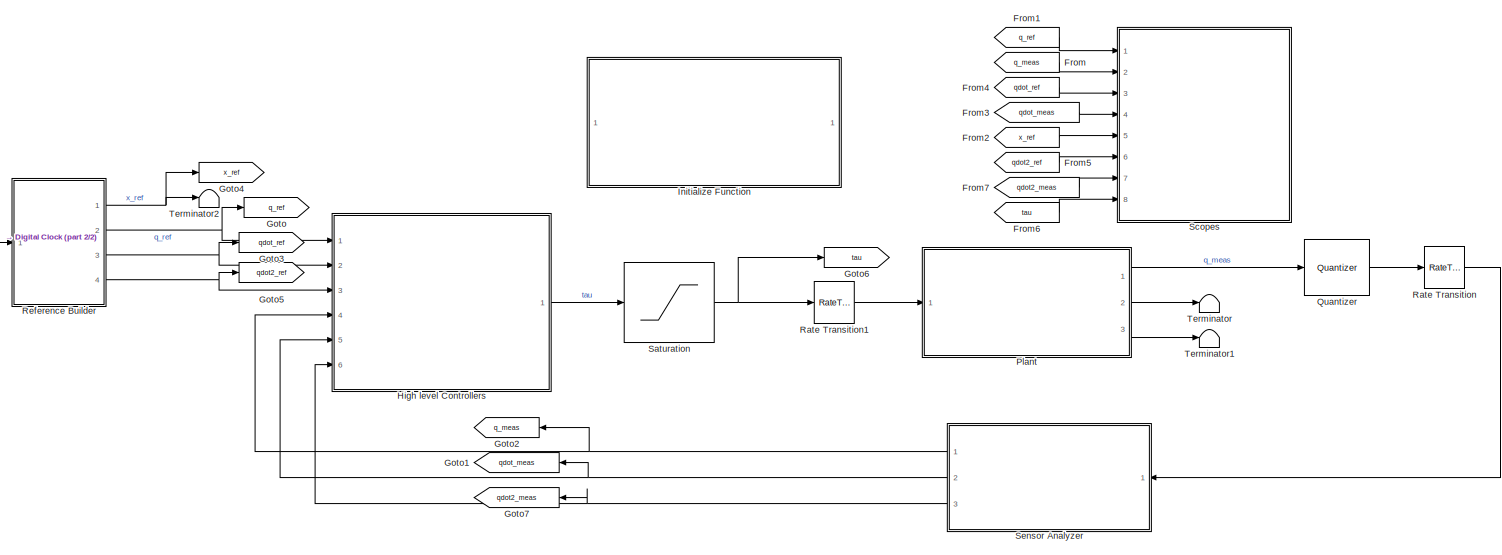
[diagram: root canvas - part 1/2, most of the canvas]
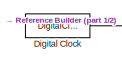
[diagram: root canvas - part 2/2, middle left region]
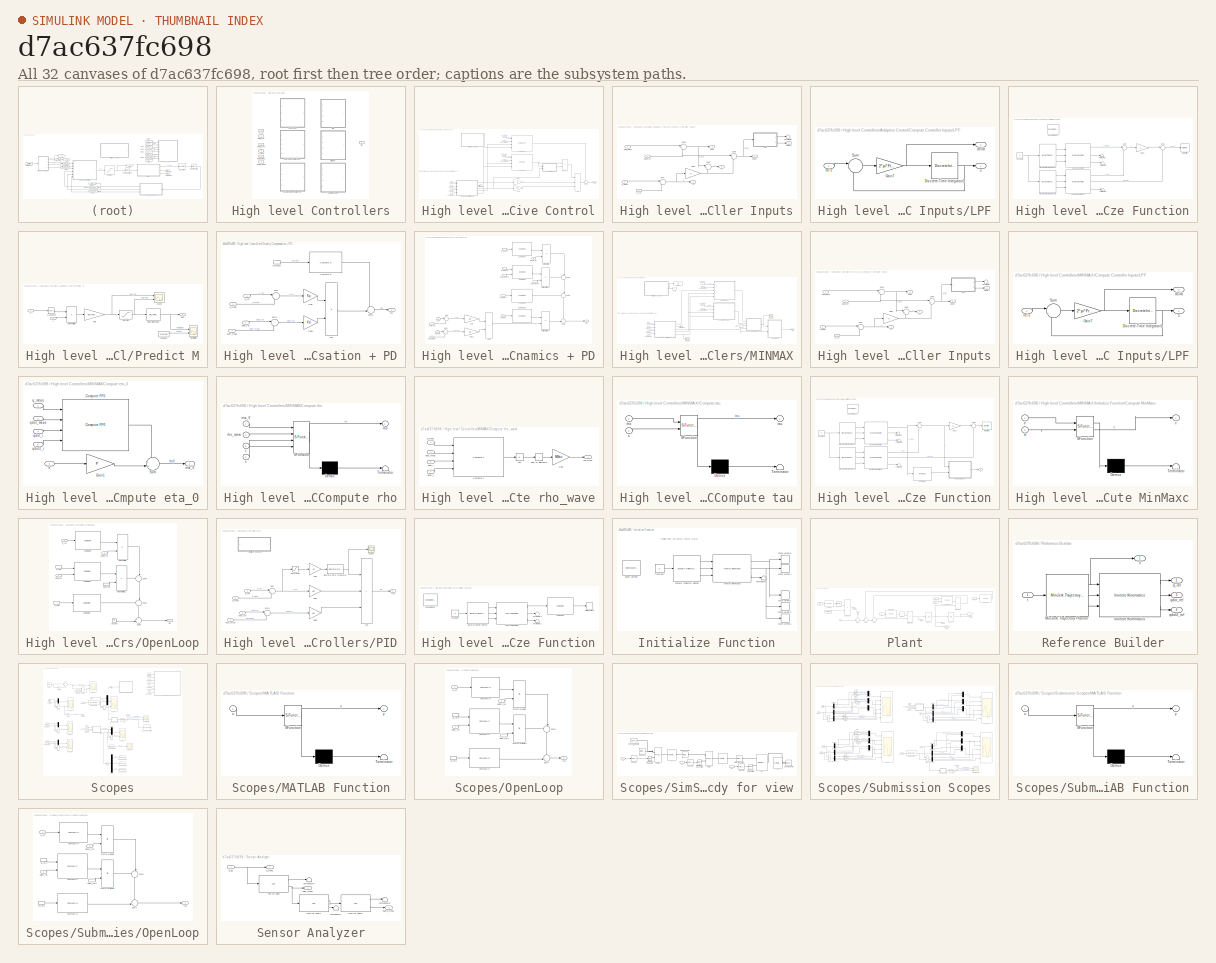
[diagram: thumbnail index - all 32 canvases of the model, root first then tree order]
MODEL slx_d7ac637fc698
KIND model
CONFIG AbsTol = auto
CONFIG EnableMultiTasking = off
CONFIG FixedStep = dt
CONFIG MaxStep = auto
CONFIG MinStep = auto
CONFIG RelTol = auto
CONFIG SampleTimeConstraint = Unconstrained
CONFIG SolverName = ode45
CONFIG StartTime = 0.0
CONFIG StopTime = 2.5
WORKSPACE source: mxarray member
WORKSPACE ArcLength = 0.2693
WORKSPACE D = 0.015
WORKSPACE H = 0.2
WORKSPACE L = 0.1
WORKSPACE L1 = 0.1
WORKSPACE MActual = 0
WORKSPACE MPlanned = 0.5
WORKSPACE P0 = [0.1 0.05 0.25]
WORKSPACE P0_Actual = [0.1 0.05 0.35]
WORKSPACE Pf = [0.25 -0.15 0.35]
WORKSPACE RobotSimulation_sdosession: sldodialogs.data.SessionData (value not decoded)
WORKSPACE T = 2
WORKSPACE Tbreaks = 2
WORKSPACE dt = 1e-05
WORKSPACE elbows = [1 1]
BLOCK [DigitalClock] Digital Clock
  SampleTime = dt
BLOCK [From] From
  GotoTag = q_meas
  NameLocation = top
BLOCK [From] From1
  GotoTag = q_ref
  NameLocation = top
BLOCK [From] From2
  GotoTag = x_ref
BLOCK [From] From3
  GotoTag = qdot_meas
  NameLocation = top
BLOCK [From] From4
  GotoTag = qdot_ref
BLOCK [From] From5
  GotoTag = qdot2_ref
BLOCK [From] From6
  GotoTag = tau
BLOCK [From] From7
  GotoTag = qdot2_meas
  NameLocation = top
BLOCK [Goto] Goto
  GotoTag = q_ref
BLOCK [Goto] Goto1
  GotoTag = qdot_meas
  NameLocation = top
BLOCK [Goto] Goto2
  GotoTag = q_meas
  NameLocation = top
BLOCK [Goto] Goto3
  GotoTag = qdot_ref
BLOCK [Goto] Goto4
  GotoTag = x_ref
BLOCK [Goto] Goto5
  GotoTag = qdot2_ref
BLOCK [Goto] Goto6
  GotoTag = tau
BLOCK [Goto] Goto7
  GotoTag = qdot2_meas
  NameLocation = top
BLOCK [SubSystem] High level Controllers
  LabelModeActiveChoice = Choice5
  Ports = [6, 1]
  RequestExecContextInheritance = off
  TreatAsAtomicUnit = on
  Variant = on
  VariantControl = Choice
  VariantControlMode = label
BLOCK [SubSystem] High level Controllers/Adaptive Control
  Ports = [4, 1]
  RequestExecContextInheritance = off
  VariantControl = Choice5
BLOCK [Sum] High level Controllers/Adaptive Control/Add
  IconShape = rectangular
  Inputs = +++
  Ports = [3, 1]
BLOCK [SubSystem] High level Controllers/Adaptive Control/Compute Controller Inputs
  AncestorBlock = RRProbotLibrary/Blocks/Compute Controller Inputs
  Ports = [4, 5]
  RequestExecContextInheritance = off
  TreatAsAtomicUnit = on
BLOCK [Gain] High level Controllers/Adaptive Control/Compute Controller Inputs/Gain1
  Gain = K
  Multiplication = Matrix(K*u)
BLOCK [SubSystem] High level Controllers/Adaptive Control/Compute Controller Inputs/LPF
  AncestorBlock = RRProbotLibrary/Blocks/LPF
  Ports = [1, 2]
  RequestExecContextInheritance = off
BLOCK [DiscreteIntegrator] High level Controllers/Adaptive Control/Compute Controller Inputs/LPF/Discrete-Time Integrator1
  ICPrevOutput = DiscIntNeverNeededParam
  ICPrevScaledInput = DiscIntNeverNeededParam
  InitialCondition = s0
  InitialConditionSetting = Auto
  Ports = [1, 1]
  SampleTime = -1
BLOCK [Gain] High level Controllers/Adaptive Control/Compute Controller Inputs/LPF/Gain7
  Gain = 2*pi*Freq
BLOCK [Sum] High level Controllers/Adaptive Control/Compute Controller Inputs/LPF/Sum
  Inputs = |+-
  Ports = [2, 1]
BLOCK [Outport] High level Controllers/Adaptive Control/Compute Controller Inputs/LPF/ds//dt
  Port = 2
  VectorParamsAs1DForOutWhenUnconnected = off
BLOCK [Inport] High level Controllers/Adaptive Control/Compute Controller Inputs/LPF/ref s
BLOCK [Outport] High level Controllers/Adaptive Control/Compute Controller Inputs/LPF/s
  VectorParamsAs1DForOutWhenUnconnected = off
BLOCK [Sum] High level Controllers/Adaptive Control/Compute Controller Inputs/Sum
  Inputs = |+-
  Ports = [2, 1]
BLOCK [Sum] High level Controllers/Adaptive Control/Compute Controller Inputs/Sum1
  Inputs = |+-
  Ports = [2, 1]
BLOCK [Sum] High level Controllers/Adaptive Control/Compute Controller Inputs/Sum2
  Inputs = |++
  Ports = [2, 1]
BLOCK [Sum] High level Controllers/Adaptive Control/Compute Controller Inputs/Sum3
  Inputs = |+-
  Ports = [2, 1]
BLOCK [Terminator] High level Controllers/Adaptive Control/Compute Controller Inputs/Terminator
BLOCK [Outport] High level Controllers/Adaptive Control/Compute Controller Inputs/e
BLOCK [Outport] High level Controllers/Adaptive Control/Compute Controller Inputs/edot
  Port = 2
BLOCK [Inport] High level Controllers/Adaptive Control/Compute Controller Inputs/q_meas
  Port = 3
  PortDimensions = 3
BLOCK [Inport] High level Controllers/Adaptive Control/Compute Controller Inputs/q_ref
  PortDimensions = 3
BLOCK [Outport] High level Controllers/Adaptive Control/Compute Controller Inputs/qdot2_r
  Port = 5
BLOCK [Inport] High level Controllers/Adaptive Control/Compute Controller Inputs/qdot_meas
  Port = 4
  PortDimensions = 3
BLOCK [Outport] High level Controllers/Adaptive Control/Compute Controller Inputs/qdot_r
  Port = 4
BLOCK [Inport] High level Controllers/Adaptive Control/Compute Controller Inputs/qdot_ref
  Port = 2
  PortDimensions = 3
BLOCK [Outport] High level Controllers/Adaptive Control/Compute Controller Inputs/s
  Port = 3
BLOCK [Reference] High level Controllers/Adaptive Control/Compute FF0  REF=RRProbotLibrary/Blocks/Compute FF0
  Ports = [4, 1]
  SourceBlock = RRProbotLibrary/Blocks/Compute FF0
  SourceProductName = RRProbotLibrary
  SourceType = SubSystem
BLOCK [Reference] High level Controllers/Adaptive Control/Compute Y  REF=RRProbotLibrary/Blocks/Compute Y
  Ports = [4, 1]
  SourceBlock = RRProbotLibrary/Blocks/Compute Y
  SourceProductName = RRProbotLibrary
  SourceType = SubSystem
BLOCK [Gain] High level Controllers/Adaptive Control/Gain
  Gain = -Kd
  Multiplication = Matrix(K*u) (u vector)
BLOCK [Gain] High level Controllers/Adaptive Control/Gain2
  Gain = -Q
  Multiplication = Matrix(K*u) (u vector)
BLOCK [SubSystem] High level Controllers/Adaptive Control/Initialize Function
  Ports = []
  RequestExecContextInheritance = off
  TreatAsAtomicUnit = on
BLOCK [Constant] High level Controllers/Adaptive Control/Initialize Function/Constant1
  Value = 0
BLOCK [EventListener] High level Controllers/Adaptive Control/Initialize Function/Event Listener
  DisableCoverage = on
  EventName = reset
BLOCK [Gain] High level Controllers/Adaptive Control/Initialize Function/Gain1
  Gain = K
  Multiplication = Matrix(K*u)
BLOCK [Reference] High level Controllers/Adaptive Control/Initialize Function/Inverse Kinematics  REF=RRProbotLibrary/Functions/Inverse Kinematics
  Ports = [3, 3]
  SourceBlock = RRProbotLibrary/Functions/Inverse Kinematics
  SourceProductName = RRProbotLibrary
BLOCK [Reference] High level Controllers/Adaptive Control/Initialize Function/Inverse Kinematics1  REF=RRProbotLibrary/Functions/Inverse Kinematics
  Ports = [3, 3]
  SourceBlock = RRProbotLibrary/Functions/Inverse Kinematics
  SourceProductName = RRProbotLibrary
BLOCK [Reference] High level Controllers/Adaptive Control/Initialize Function/MinJerk Trajectory Planner  REF=RRProbotLibrary/Functions/MinJerk Trajectory Planner
  Ports = [1, 3]
  SourceBlock = RRProbotLibrary/Functions/MinJerk Trajectory Planner
  SourceProductName = RRProbotLibrary
BLOCK [Reference] High level Controllers/Adaptive Control/Initialize Function/MinJerk Trajectory Planner1  REF=RRProbotLibrary/Functions/MinJerk Trajectory Planner
  Ports = [1, 3]
  SourceBlock = RRProbotLibrary/Functions/MinJerk Trajectory Planner
  SourceProductName = RRProbotLibrary
BLOCK [StateWriter] High level Controllers/Adaptive Control/Initialize Function/State Writer
  StateOwnerBlock = ../../Compute Controller Inputs/LPF/Discrete-Time Integrator1
BLOCK [Sum] High level Controllers/Adaptive Control/Initialize Function/Sum1
  Inputs = |-+
  Ports = [2, 1]
BLOCK [Sum] High level Controllers/Adaptive Control/Initialize Function/Sum3
  Inputs = |+-
  Ports = [2, 1]
BLOCK [Terminator] High level Controllers/Adaptive Control/Initialize Function/Terminator1
BLOCK [Terminator] High level Controllers/Adaptive Control/Initialize Function/Terminator2
BLOCK [Terminator] High level Controllers/Adaptive Control/Initialize Function/Terminator3
BLOCK [SubSystem] High level Controllers/Adaptive Control/Predict M
  Ports = [2, 1]
  RequestExecContextInheritance = off
  TreatAsAtomicUnit = on
BLOCK [Constant] High level Controllers/Adaptive Control/Predict M/Constant
  Value = MActual
BLOCK [Gain] High level Controllers/Adaptive Control/Predict M/Gain
  Gain = -invGamma
  Multiplication = Matrix(K*u) (u vector)
BLOCK [DiscreteIntegrator] High level Controllers/Adaptive Control/Predict M/Integrate for MEst
  ICPrevOutput = DiscIntNeverNeededParam
  ICPrevScaledInput = DiscIntNeverNeededParam
  InitialCondition = MEst0
  InitialConditionSetting = Auto
  LimitOutput = on
  LowerSaturationLimit = 0
  Ports = [1, 1]
  SampleTime = -1
  UpperSaturationLimit = MMax
BLOCK [Outport] High level Controllers/Adaptive Control/Predict M/MEst
BLOCK [Product] High level Controllers/Adaptive Control/Predict M/MatrixMultiply
  Multiplication = Matrix(*)
  Ports = [2, 1]
BLOCK [Scope] High level Controllers/Adaptive Control/Predict M/Mestimation
  Floating = off
  NumInputPorts = 2
  Ports = [2]
  ScopeSpecificationString = Simulink.scopes.TimeScopeBlockCfg('CurrentConfiguration', extmgr.ConfigurationSet(extmgr.Configuration('Core','General UI',true),extmgr.Configuration('Core','Source UI',true),extmgr.Configuration('Sources','WiredSimulink',true,'DataLoggingVariableName','ScopeData4'),extmgr.Configuration('Visuals','Time Domain',true,'SerializedDisplays',{struct('MinYLimReal','-0.35761','MaxYLimReal','0.60721','YLab...<+1461ch>
BLOCK [Saturate] High level Controllers/Adaptive Control/Predict M/Saturation
  LowerLimit = MEst_dot_Sat(2)
  UpperLimit = MEst_dot_Sat(1)
BLOCK [Scope] High level Controllers/Adaptive Control/Predict M/Scope
  Floating = off
  NumInputPorts = 2
  Ports = [2]
  ScopeSpecificationString = Simulink.scopes.TimeScopeBlockCfg('CurrentConfiguration', extmgr.ConfigurationSet(extmgr.Configuration('Core','General UI',true),extmgr.Configuration('Core','Source UI',true),extmgr.Configuration('Sources','WiredSimulink',true,'DataLoggingVariableName','ScopeData1'),extmgr.Configuration('Visuals','Time Domain',true,'SerializedDisplays',{struct('MinYLimReal','-9.27316','MaxYLimReal','1.17565','YLab...<+1454ch>
BLOCK [Math] High level Controllers/Adaptive Control/Predict M/Transpose
  Operator = transpose
  Ports = [1, 1]
BLOCK [Inport] High level Controllers/Adaptive Control/Predict M/Y
BLOCK [Inport] High level Controllers/Adaptive Control/Predict M/s
  Port = 2
BLOCK [Product] High level Controllers/Adaptive Control/Product
  Ports = [2, 1]
BLOCK [Sum] High level Controllers/Adaptive Control/Sum1
  Inputs = ++|
  Ports = [2, 1]
BLOCK [Terminator] High level Controllers/Adaptive Control/Terminator
BLOCK [Inport] High level Controllers/Adaptive Control/q_meas
  Port = 3
  PortDimensions = 3
BLOCK [InportShadow] High level Controllers/Adaptive Control/q_meas1
  Port = 3
  PortDimensions = 3
BLOCK [InportShadow] High level Controllers/Adaptive Control/q_meas2
  Port = 3
  PortDimensions = 3
BLOCK [Inport] High level Controllers/Adaptive Control/q_ref
  PortDimensions = 3
BLOCK [Inport] High level Controllers/Adaptive Control/qdot_meas
  Port = 4
  PortDimensions = 3
BLOCK [InportShadow] High level Controllers/Adaptive Control/qdot_meas1
  Port = 4
  PortDimensions = 3
BLOCK [InportShadow] High level Controllers/Adaptive Control/qdot_meas2
  Port = 4
  PortDimensions = 3
BLOCK [Inport] High level Controllers/Adaptive Control/qdot_ref
  Port = 2
  PortDimensions = 3
BLOCK [Outport] High level Controllers/Adaptive Control/tau
BLOCK [SubSystem] High level Controllers/Gravity Compensation + PD
  Ports = [4, 1]
  RequestExecContextInheritance = off
  TreatAsAtomicUnit = on
  VariantControl = Choice2
BLOCK [Sum] High level Controllers/Gravity Compensation + PD/Add
  IconShape = rectangular
  Ports = [2, 1]
BLOCK [Reference] High level Controllers/Gravity Compensation + PD/Compute G  REF=RRProbotLibrary/Functions/Compute G
  Ports = [1, 1]
  SourceBlock = RRProbotLibrary/Functions/Compute G
  SourceProductName = RRProbotLibrary
BLOCK [Gain] High level Controllers/Gravity Compensation + PD/Gain
  Gain = Kp
  Multiplication = Matrix(K*u) (u vector)
BLOCK [Gain] High level Controllers/Gravity Compensation + PD/Gain1
  Gain = Kd
  Multiplication = Matrix(K*u) (u vector)
BLOCK [Sum] High level Controllers/Gravity Compensation + PD/Sum
  Inputs = |+-
  Ports = [2, 1]
BLOCK [Sum] High level Controllers/Gravity Compensation + PD/Sum1
  Inputs = |+-
  Ports = [2, 1]
BLOCK [Sum] High level Controllers/Gravity Compensation + PD/Sum2
  Inputs = ++|
  Ports = [2, 1]
BLOCK [Inport] High level Controllers/Gravity Compensation + PD/q_meas
  Port = 3
  PortDimensions = 3
BLOCK [InportShadow] High level Controllers/Gravity Compensation + PD/q_meas2
  Port = 3
  PortDimensions = 3
BLOCK [Inport] High level Controllers/Gravity Compensation + PD/q_ref
  PortDimensions = 3
BLOCK [Inport] High level Controllers/Gravity Compensation + PD/qdot_meas
  Port = 4
  PortDimensions = 3
BLOCK [Inport] High level Controllers/Gravity Compensation + PD/qdot_ref
  Port = 2
  PortDimensions = 3
BLOCK [Outport] High level Controllers/Gravity Compensation + PD/tau
BLOCK [SubSystem] High level Controllers/Inverse Dynamics + PD
  Ports = [5, 1]
  RequestExecContextInheritance = off
  TreatAsAtomicUnit = on
  VariantControl = Choice1
BLOCK [Sum] High level Controllers/Inverse Dynamics + PD/Add1
  IconShape = rectangular
  Ports = [2, 1]
BLOCK [Reference] High level Controllers/Inverse Dynamics + PD/Compute C  REF=RRProbotLibrary/Functions/Compute C
  Ports = [2, 1]
  SourceBlock = RRProbotLibrary/Functions/Compute C
  SourceProductName = RRProbotLibrary
BLOCK [Reference] High level Controllers/Inverse Dynamics + PD/Compute G  REF=RRProbotLibrary/Functions/Compute G
  Ports = [1, 1]
  SourceBlock = RRProbotLibrary/Functions/Compute G
  SourceProductName = RRProbotLibrary
BLOCK [Reference] High level Controllers/Inverse Dynamics + PD/Compute H  REF=RRProbotLibrary/Functions/Compute H
  Ports = [1, 1]
  SourceBlock = RRProbotLibrary/Functions/Compute H
  SourceProductName = RRProbotLibrary
BLOCK [Reference] High level Controllers/Inverse Dynamics + PD/Compute H1  REF=RRProbotLibrary/Functions/Compute H
  Ports = [1, 1]
  SourceBlock = RRProbotLibrary/Functions/Compute H
  SourceProductName = RRProbotLibrary
BLOCK [Gain] High level Controllers/Inverse Dynamics + PD/Gain
  Gain = Kp
  Multiplication = Matrix(K*u) (u vector)
BLOCK [Gain] High level Controllers/Inverse Dynamics + PD/Gain1
  Gain = Kd
  Multiplication = Matrix(K*u) (u vector)
BLOCK [Product] High level Controllers/Inverse Dynamics + PD/Matrix Multiply
  Multiplication = Matrix(*)
  Ports = [2, 1]
BLOCK [Product] High level Controllers/Inverse Dynamics + PD/Matrix Multiply1
  Multiplication = Matrix(*)
  Ports = [2, 1]
BLOCK [Product] High level Controllers/Inverse Dynamics + PD/Matrix Multiply2
  Multiplication = Matrix(*)
  Ports = [2, 1]
BLOCK [Sum] High level Controllers/Inverse Dynamics + PD/Sum
  Inputs = |+-
  Ports = [2, 1]
BLOCK [Sum] High level Controllers/Inverse Dynamics + PD/Sum1
  Inputs = |+-
  Ports = [2, 1]
BLOCK [Sum] High level Controllers/Inverse Dynamics + PD/Sum2
  Inputs = ++|
  Ports = [2, 1]
BLOCK [Sum] High level Controllers/Inverse Dynamics + PD/Sum3
  Inputs = ++|
  NameLocation = left
  Ports = [2, 1]
BLOCK [Sum] High level Controllers/Inverse Dynamics + PD/Sum4
  Inputs = ++|
  NameLocation = left
  Ports = [2, 1]
BLOCK [Inport] High level Controllers/Inverse Dynamics + PD/q_meas
  Port = 4
  PortDimensions = 3
BLOCK [InportShadow] High level Controllers/Inverse Dynamics + PD/q_meas1
  Port = 4
  PortDimensions = 3
BLOCK [InportShadow] High level Controllers/Inverse Dynamics + PD/q_meas2
  Port = 4
  PortDimensions = 3
BLOCK [InportShadow] High level Controllers/Inverse Dynamics + PD/q_meas3
  Port = 4
  PortDimensions = 3
BLOCK [InportShadow] High level Controllers/Inverse Dynamics + PD/q_meas4
  Port = 4
  PortDimensions = 3
BLOCK [Inport] High level Controllers/Inverse Dynamics + PD/q_ref
  PortDimensions = 3
BLOCK [Inport] High level Controllers/Inverse Dynamics + PD/qdot2_ref
  Port = 3
  PortDimensions = 3
BLOCK [Inport] High level Controllers/Inverse Dynamics + PD/qdot_meas
  Port = 5
  PortDimensions = 3
BLOCK [InportShadow] High level Controllers/Inverse Dynamics + PD/qdot_meas1
  Port = 5
  PortDimensions = 3
BLOCK [InportShadow] High level Controllers/Inverse Dynamics + PD/qdot_meas2
  Port = 5
  PortDimensions = 3
BLOCK [Inport] High level Controllers/Inverse Dynamics + PD/qdot_ref
  Port = 2
  PortDimensions = 3
BLOCK [Outport] High level Controllers/Inverse Dynamics + PD/tau
BLOCK [SubSystem] High level Controllers/MINMAX
  Ports = [4, 1]
  RequestExecContextInheritance = off
  VariantControl = Choice4
BLOCK [SubSystem] High level Controllers/MINMAX/Compute Controller Inputs
  AncestorBlock = RRProbotLibrary/Blocks/Compute Controller Inputs
  Ports = [4, 5]
  RequestExecContextInheritance = off
  TreatAsAtomicUnit = on
BLOCK [Gain] High level Controllers/MINMAX/Compute Controller Inputs/Gain1
  Gain = K
  Multiplication = Matrix(K*u)
BLOCK [SubSystem] High level Controllers/MINMAX/Compute Controller Inputs/LPF
  AncestorBlock = RRProbotLibrary/Blocks/LPF
  Ports = [1, 2]
  RequestExecContextInheritance = off
BLOCK [DiscreteIntegrator] High level Controllers/MINMAX/Compute Controller Inputs/LPF/Discrete-Time Integrator1
  ICPrevOutput = DiscIntNeverNeededParam
  ICPrevScaledInput = DiscIntNeverNeededParam
  InitialCondition = s0
  InitialConditionSetting = Auto
  Ports = [1, 1]
  SampleTime = -1
BLOCK [Gain] High level Controllers/MINMAX/Compute Controller Inputs/LPF/Gain7
  Gain = 2*pi*Freq
BLOCK [Sum] High level Controllers/MINMAX/Compute Controller Inputs/LPF/Sum
  Inputs = |+-
  Ports = [2, 1]
BLOCK [Outport] High level Controllers/MINMAX/Compute Controller Inputs/LPF/ds//dt
  Port = 2
  VectorParamsAs1DForOutWhenUnconnected = off
BLOCK [Inport] High level Controllers/MINMAX/Compute Controller Inputs/LPF/ref s
BLOCK [Outport] High level Controllers/MINMAX/Compute Controller Inputs/LPF/s
  VectorParamsAs1DForOutWhenUnconnected = off
BLOCK [Sum] High level Controllers/MINMAX/Compute Controller Inputs/Sum
  Inputs = |+-
  Ports = [2, 1]
BLOCK [Sum] High level Controllers/MINMAX/Compute Controller Inputs/Sum1
  Inputs = |+-
  Ports = [2, 1]
BLOCK [Sum] High level Controllers/MINMAX/Compute Controller Inputs/Sum2
  Inputs = |++
  Ports = [2, 1]
BLOCK [Sum] High level Controllers/MINMAX/Compute Controller Inputs/Sum3
  Inputs = |+-
  Ports = [2, 1]
BLOCK [Terminator] High level Controllers/MINMAX/Compute Controller Inputs/Terminator
BLOCK [Outport] High level Controllers/MINMAX/Compute Controller Inputs/e
BLOCK [Outport] High level Controllers/MINMAX/Compute Controller Inputs/edot
  Port = 2
BLOCK [Inport] High level Controllers/MINMAX/Compute Controller Inputs/q_meas
  Port = 3
  PortDimensions = 3
BLOCK [Inport] High level Controllers/MINMAX/Compute Controller Inputs/q_ref
  PortDimensions = 3
BLOCK [Outport] High level Controllers/MINMAX/Compute Controller Inputs/qdot2_r
  Port = 5
BLOCK [Inport] High level Controllers/MINMAX/Compute Controller Inputs/qdot_meas
  Port = 4
  PortDimensions = 3
BLOCK [Outport] High level Controllers/MINMAX/Compute Controller Inputs/qdot_r
  Port = 4
BLOCK [Inport] High level Controllers/MINMAX/Compute Controller Inputs/qdot_ref
  Port = 2
  PortDimensions = 3
BLOCK [Outport] High level Controllers/MINMAX/Compute Controller Inputs/s
  Port = 3
BLOCK [SubSystem] High level Controllers/MINMAX/Compute eta_0
  Ports = [5, 1]
  RequestExecContextInheritance = off
BLOCK [Reference] High level Controllers/MINMAX/Compute eta_0/Compute FF0  REF=RRProbotLibrary/Blocks/Compute FF0
  Ports = [4, 1]
  SourceBlock = RRProbotLibrary/Blocks/Compute FF0
  SourceProductName = RRProbotLibrary
  SourceType = SubSystem
BLOCK [Gain] High level Controllers/MINMAX/Compute eta_0/Gain1
  Gain = P
  Multiplication = Matrix(K*u) (u vector)
BLOCK [Sum] High level Controllers/MINMAX/Compute eta_0/Sum
  Inputs = -+|
  Ports = [2, 1]
BLOCK [Inport] High level Controllers/MINMAX/Compute eta_0/e
  Port = 3
BLOCK [Outport] High level Controllers/MINMAX/Compute eta_0/eta_0
BLOCK [Inport] High level Controllers/MINMAX/Compute eta_0/q_meas
  PortDimensions = 3
BLOCK [Inport] High level Controllers/MINMAX/Compute eta_0/qdot2_r
  Port = 5
BLOCK [Inport] High level Controllers/MINMAX/Compute eta_0/qdot_meas
  Port = 2
  PortDimensions = 3
BLOCK [Inport] High level Controllers/MINMAX/Compute eta_0/qdot_r
  Port = 4
BLOCK [SubSystem] High level Controllers/MINMAX/Compute rho
  ErrorFcn = Stateflow.Translate.translate
  PermitHierarchicalResolution = ExplicitOnly
  Ports = [4, 1]
  RequestExecContextInheritance = off
  SFBlockType = MATLAB Function
  TreatAsAtomicUnit = on
BLOCK [Demux] High level Controllers/MINMAX/Compute rho/ Demux 
  Outputs = 1
  Ports = [1, 1]
BLOCK [S-Function] High level Controllers/MINMAX/Compute rho/ SFunction 
  EnableBusSupport = on
  FunctionName = sf_sfun
  Parameters = beta
  PortCounts = [4 2]
  Ports = [4, 2]
  SFcnIsStateOwnerBlock = off
  SFunctionDeploymentMode = off
  Tag = Stateflow S-Function 1
BLOCK [Terminator] High level Controllers/MINMAX/Compute rho/ Terminator 
BLOCK [Inport] High level Controllers/MINMAX/Compute rho/c
  Port = 3
BLOCK [Inport] High level Controllers/MINMAX/Compute rho/eta_0
BLOCK [Outport] High level Controllers/MINMAX/Compute rho/rho
BLOCK [Inport] High level Controllers/MINMAX/Compute rho/rho_wave
  Port = 2
BLOCK [Inport] High level Controllers/MINMAX/Compute rho/s
  Port = 4
BLOCK [SubSystem] High level Controllers/MINMAX/Compute rho_wave
  Ports = [4, 1]
  RequestExecContextInheritance = off
BLOCK [Abs] High level Controllers/MINMAX/Compute rho_wave/Abs
  SaturateOnIntegerOverflow = off
BLOCK [Reference] High level Controllers/MINMAX/Compute rho_wave/Compute Y  REF=RRProbotLibrary/Blocks/Compute Y
  Ports = [4, 1]
  SourceBlock = RRProbotLibrary/Blocks/Compute Y
  SourceProductName = RRProbotLibrary
  SourceType = SubSystem
BLOCK [Gain] High level Controllers/MINMAX/Compute rho_wave/Gain
  Gain = MMax
BLOCK [Sum] High level Controllers/MINMAX/Compute rho_wave/Sum of Elements
  IconShape = rectangular
  Inputs = +
  Ports = [1, 1]
BLOCK [Inport] High level Controllers/MINMAX/Compute rho_wave/q_meas
BLOCK [Inport] High level Controllers/MINMAX/Compute rho_wave/qdot2_r
  Port = 4
BLOCK [Inport] High level Controllers/MINMAX/Compute rho_wave/qdot_meas
  Port = 2
BLOCK [Inport] High level Controllers/MINMAX/Compute rho_wave/qdot_r
  Port = 3
BLOCK [Outport] High level Controllers/MINMAX/Compute rho_wave/rho_wave
BLOCK [SubSystem] High level Controllers/MINMAX/Compute tau
  ErrorFcn = Stateflow.Translate.translate
  PermitHierarchicalResolution = ExplicitOnly
  Ports = [2, 1]
  RequestExecContextInheritance = off
  SFBlockType = MATLAB Function
  TreatAsAtomicUnit = on
BLOCK [Demux] High level Controllers/MINMAX/Compute tau/ Demux 
  Outputs = 1
  Ports = [1, 1]
BLOCK [S-Function] High level Controllers/MINMAX/Compute tau/ SFunction 
  EnableBusSupport = on
  FunctionName = sf_sfun
  Parameters = delta
  PortCounts = [2 2]
  Ports = [2, 2]
  SFcnIsStateOwnerBlock = off
  SFunctionDeploymentMode = off
  Tag = Stateflow S-Function 3
BLOCK [Terminator] High level Controllers/MINMAX/Compute tau/ Terminator 
BLOCK [Inport] High level Controllers/MINMAX/Compute tau/rho
BLOCK [Inport] High level Controllers/MINMAX/Compute tau/s
  Port = 2
BLOCK [Outport] High level Controllers/MINMAX/Compute tau/tau
BLOCK [Display] High level Controllers/MINMAX/Display
  Decimation = 1
  Ports = [1]
BLOCK [From] High level Controllers/MINMAX/From
  GotoTag = c
BLOCK [Goto] High level Controllers/MINMAX/Goto
  GotoTag = c
BLOCK [SubSystem] High level Controllers/MINMAX/Initialize Function
  Ports = [0, 1]
  RequestExecContextInheritance = off
  TreatAsAtomicUnit = on
BLOCK [Reference] High level Controllers/MINMAX/Initialize Function/Compute H  REF=RRProbotLibrary/Functions/Compute H
  Ports = [1, 1]
  SourceBlock = RRProbotLibrary/Functions/Compute H
  SourceProductName = RRProbotLibrary
BLOCK [SubSystem] High level Controllers/MINMAX/Initialize Function/Compute MinMaxc
  ErrorFcn = Stateflow.Translate.translate
  PermitHierarchicalResolution = ExplicitOnly
  Ports = [2, 1]
  RequestExecContextInheritance = off
  SFBlockType = MATLAB Function
  TreatAsAtomicUnit = on
BLOCK [Demux] High level Controllers/MINMAX/Initialize Function/Compute MinMaxc/ Demux 
  Outputs = 1
  Ports = [1, 1]
BLOCK [S-Function] High level Controllers/MINMAX/Initialize Function/Compute MinMaxc/ SFunction 
  EnableBusSupport = on
  FunctionName = sf_sfun
  Parameters = K,P,t_conv
  PortCounts = [2 2]
  Ports = [2, 2]
  SFcnIsStateOwnerBlock = off
  SFunctionDeploymentMode = off
  Tag = Stateflow S-Function 4
BLOCK [Terminator] High level Controllers/MINMAX/Initialize Function/Compute MinMaxc/ Terminator 
BLOCK [Inport] High level Controllers/MINMAX/Initialize Function/Compute MinMaxc/H
  Port = 2
BLOCK [Outport] High level Controllers/MINMAX/Initialize Function/Compute MinMaxc/c
BLOCK [Inport] High level Controllers/MINMAX/Initialize Function/Compute MinMaxc/e
BLOCK [Constant] High level Controllers/MINMAX/Initialize Function/Constant1
  Value = 0
BLOCK [EventListener] High level Controllers/MINMAX/Initialize Function/Event Listener
  DisableCoverage = on
  EventName = reset
BLOCK [Gain] High level Controllers/MINMAX/Initialize Function/Gain1
  Gain = K
  Multiplication = Matrix(K*u)
BLOCK [Reference] High level Controllers/MINMAX/Initialize Function/Inverse Kinematics  REF=RRProbotLibrary/Functions/Inverse Kinematics
  Ports = [3, 3]
  SourceBlock = RRProbotLibrary/Functions/Inverse Kinematics
  SourceProductName = RRProbotLibrary
BLOCK [Reference] High level Controllers/MINMAX/Initialize Function/Inverse Kinematics1  REF=RRProbotLibrary/Functions/Inverse Kinematics
  Ports = [3, 3]
  SourceBlock = RRProbotLibrary/Functions/Inverse Kinematics
  SourceProductName = RRProbotLibrary
BLOCK [Reference] High level Controllers/MINMAX/Initialize Function/MinJerk Trajectory Planner  REF=RRProbotLibrary/Functions/MinJerk Trajectory Planner
  Ports = [1, 3]
  SourceBlock = RRProbotLibrary/Functions/MinJerk Trajectory Planner
  SourceProductName = RRProbotLibrary
BLOCK [Reference] High level Controllers/MINMAX/Initialize Function/MinJerk Trajectory Planner1  REF=RRProbotLibrary/Functions/MinJerk Trajectory Planner
  Ports = [1, 3]
  SourceBlock = RRProbotLibrary/Functions/MinJerk Trajectory Planner
  SourceProductName = RRProbotLibrary
BLOCK [StateWriter] High level Controllers/MINMAX/Initialize Function/State Writer
  StateOwnerBlock = ../../Compute Controller Inputs/LPF/Discrete-Time Integrator1
BLOCK [Sum] High level Controllers/MINMAX/Initialize Function/Sum1
  Inputs = |-+
  Ports = [2, 1]
BLOCK [Sum] High level Controllers/MINMAX/Initialize Function/Sum3
  Inputs = |+-
  Ports = [2, 1]
BLOCK [Terminator] High level Controllers/MINMAX/Initialize Function/Terminator1
BLOCK [Terminator] High level Controllers/MINMAX/Initialize Function/Terminator2
BLOCK [Terminator] High level Controllers/MINMAX/Initialize Function/Terminator3
BLOCK [Outport] High level Controllers/MINMAX/Initialize Function/c
BLOCK [Scope] High level Controllers/MINMAX/Scope
  Floating = off
  NumInputPorts = 1
  Ports = [1]
  ScopeSpecificationString = Simulink.scopes.TimeScopeBlockCfg('CurrentConfiguration', extmgr.ConfigurationSet(extmgr.Configuration('Core','General UI',true),extmgr.Configuration('Core','Source UI',true),extmgr.Configuration('Sources','WiredSimulink',true,'DataLoggingVariableName','ScopeData1'),extmgr.Configuration('Visuals','Time Domain',true,'SerializedDisplays',{struct('MinYLimReal','-348.63715','MaxYLimReal','190.92948','...<+1498ch>
BLOCK [Scope] High level Controllers/MINMAX/Scope1
  Floating = off
  NumInputPorts = 1
  Ports = [1]
  ScopeSpecificationString = Simulink.scopes.TimeScopeBlockCfg('CurrentConfiguration', extmgr.ConfigurationSet(extmgr.Configuration('Core','General UI',true),extmgr.Configuration('Core','Source UI',true),extmgr.Configuration('Sources','WiredSimulink',true,'DataLoggingVariableName','ScopeData2'),extmgr.Configuration('Visuals','Time Domain',true,'SerializedDisplays',{struct('MinYLimReal','9.60936','MaxYLimReal','149.56226','YLa...<+1453ch>
BLOCK [Terminator] High level Controllers/MINMAX/Terminator
BLOCK [Inport] High level Controllers/MINMAX/q_meas
  Port = 3
  PortDimensions = 3
BLOCK [InportShadow] High level Controllers/MINMAX/q_meas1
  Port = 3
  PortDimensions = 3
BLOCK [InportShadow] High level Controllers/MINMAX/q_meas2
  Port = 3
  PortDimensions = 3
BLOCK [Inport] High level Controllers/MINMAX/q_ref
  PortDimensions = 3
BLOCK [Inport] High level Controllers/MINMAX/qdot_meas
  Port = 4
  PortDimensions = 3
BLOCK [InportShadow] High level Controllers/MINMAX/qdot_meas1
  Port = 4
  PortDimensions = 3
BLOCK [InportShadow] High level Controllers/MINMAX/qdot_meas2
  Port = 4
  PortDimensions = 3
BLOCK [Inport] High level Controllers/MINMAX/qdot_ref
  Port = 2
  PortDimensions = 3
BLOCK [Outport] High level Controllers/MINMAX/tau
BLOCK [SubSystem] High level Controllers/OpenLoop
  Ports = [3, 1]
  RequestExecContextInheritance = off
  TreatAsAtomicUnit = on
  VariantControl = Choice0
BLOCK [Reference] High level Controllers/OpenLoop/Compute C  REF=RRProbotLibrary/Functions/Compute C
  Ports = [2, 1]
  SourceBlock = RRProbotLibrary/Functions/Compute C
  SourceProductName = RRProbotLibrary
BLOCK [Reference] High level Controllers/OpenLoop/Compute G  REF=RRProbotLibrary/Functions/Compute G
  Ports = [1, 1]
  SourceBlock = RRProbotLibrary/Functions/Compute G
  SourceProductName = RRProbotLibrary
BLOCK [Reference] High level Controllers/OpenLoop/Compute H  REF=RRProbotLibrary/Functions/Compute H
  Ports = [1, 1]
  SourceBlock = RRProbotLibrary/Functions/Compute H
  SourceProductName = RRProbotLibrary
BLOCK [Ground] High level Controllers/OpenLoop/Ground
BLOCK [Product] High level Controllers/OpenLoop/Matrix Multiply
  Multiplication = Matrix(*)
  Ports = [2, 1]
BLOCK [Product] High level Controllers/OpenLoop/Matrix Multiply1
  Multiplication = Matrix(*)
  Ports = [2, 1]
BLOCK [Sum] High level Controllers/OpenLoop/Sum2
  Inputs = ++|
  Ports = [2, 1]
BLOCK [Sum] High level Controllers/OpenLoop/Sum3
  Inputs = ++|
  NameLocation = left
  Ports = [2, 1]
BLOCK [Sum] High level Controllers/OpenLoop/Sum4
  Inputs = ++|
  NameLocation = left
  Ports = [2, 1]
BLOCK [Inport] High level Controllers/OpenLoop/q_ref
BLOCK [InportShadow] High level Controllers/OpenLoop/q_ref1
BLOCK [InportShadow] High level Controllers/OpenLoop/q_ref2
BLOCK [Inport] High level Controllers/OpenLoop/qdot2_ref
  Port = 3
BLOCK [Inport] High level Controllers/OpenLoop/qdot_ref
  Port = 2
BLOCK [InportShadow] High level Controllers/OpenLoop/qdot_ref1
  Port = 2
BLOCK [Outport] High level Controllers/OpenLoop/tau
BLOCK [SubSystem] High level Controllers/PID
  Ports = [4, 1]
  RequestExecContextInheritance = off
  TreatAsAtomicUnit = on
  VariantControl = Choice3
BLOCK [Sum] High level Controllers/PID/Add
  IconShape = rectangular
  Inputs = +++
  Ports = [3, 1]
BLOCK [DiscreteIntegrator] High level Controllers/PID/Discrete-Time Integrator
  ICPrevOutput = DiscIntNeverNeededParam
  ICPrevScaledInput = DiscIntNeverNeededParam
  InitialConditionSetting = Auto
  IntegratorMethod = Integration: Trapezoidal
  Ports = [1, 1]
  SampleTime = -1
BLOCK [Gain] High level Controllers/PID/Gain
  Gain = Ki
  Multiplication = Matrix(K*u)
BLOCK [Gain] High level Controllers/PID/Gain1
  Gain = Kp
  Multiplication = Matrix(K*u)
BLOCK [Gain] High level Controllers/PID/Gain2
  Gain = Kd
  Multiplication = Matrix(K*u)
BLOCK [SubSystem] High level Controllers/PID/Initialize Function
  Ports = []
  RequestExecContextInheritance = off
  TreatAsAtomicUnit = on
BLOCK [Reference] High level Controllers/PID/Initialize Function/Compute G  REF=RRProbotLibrary/Functions/Compute G
  Ports = [1, 1]
  SourceBlock = RRProbotLibrary/Functions/Compute G
  SourceProductName = RRProbotLibrary
BLOCK [Constant] High level Controllers/PID/Initialize Function/Constant1
  Value = 0
BLOCK [EventListener] High level Controllers/PID/Initialize Function/Event Listener
  DisableCoverage = on
  EventName = reset
BLOCK [Reference] High level Controllers/PID/Initialize Function/Inverse Kinematics  REF=RRProbotLibrary/Functions/Inverse Kinematics
  Ports = [3, 3]
  SourceBlock = RRProbotLibrary/Functions/Inverse Kinematics
  SourceProductName = RRProbotLibrary
BLOCK [Reference] High level Controllers/PID/Initialize Function/MinJerk Trajectory Planner  REF=RRProbotLibrary/Functions/MinJerk Trajectory Planner
  Ports = [1, 3]
  SourceBlock = RRProbotLibrary/Functions/MinJerk Trajectory Planner
  SourceProductName = RRProbotLibrary
BLOCK [StateWriter] High level Controllers/PID/Initialize Function/State Writer6
  StateOwnerBlock = ../../Discrete-Time Integrator
BLOCK [Terminator] High level Controllers/PID/Initialize Function/Terminator1
BLOCK [Terminator] High level Controllers/PID/Initialize Function/Terminator2
BLOCK [Saturate] High level Controllers/PID/Saturation
  LowerLimit = -0.02
  UpperLimit = 0.02
  ZeroCross = off
BLOCK [Scope] High level Controllers/PID/Scope
  Floating = off
  NumInputPorts = 1
  Ports = [1]
  ScopeSpecificationString = Simulink.scopes.TimeScopeBlockCfg('CurrentConfiguration', extmgr.ConfigurationSet(extmgr.Configuration('Core','General UI',true),extmgr.Configuration('Core','Source UI',true),extmgr.Configuration('Sources','WiredSimulink',true,'DataLoggingVariableName','ScopeData1'),extmgr.Configuration('Visuals','Time Domain',true,'SerializedDisplays',{struct('MinYLimReal','-13.85622','MaxYLimReal','8.12968','YLa...<+1499ch>
BLOCK [Sum] High level Controllers/PID/Sum
  Inputs = |+-
  Ports = [2, 1]
BLOCK [Sum] High level Controllers/PID/Sum1
  Inputs = |+-
  Ports = [2, 1]
BLOCK [Inport] High level Controllers/PID/q_meas
  Port = 3
  PortDimensions = 3
BLOCK [Inport] High level Controllers/PID/q_ref
  PortDimensions = 3
BLOCK [Inport] High level Controllers/PID/qdot_meas
  Port = 4
  PortDimensions = 3
BLOCK [Inport] High level Controllers/PID/qdot_ref
  Port = 2
  PortDimensions = 3
BLOCK [Outport] High level Controllers/PID/tau
BLOCK [Inport] High level Controllers/q_meas
  Port = 4
BLOCK [Inport] High level Controllers/q_ref
BLOCK [Inport] High level Controllers/qdot2_meas
  Port = 6
BLOCK [Inport] High level Controllers/qdot2_ref
  Port = 3
BLOCK [Inport] High level Controllers/qdot_meas
  Port = 5
BLOCK [Inport] High level Controllers/qdot_ref
  Port = 2
BLOCK [Outport] High level Controllers/tau
BLOCK [SubSystem] Initialize Function
  Ports = []
  RequestExecContextInheritance = off
  TreatAsAtomicUnit = on
BLOCK [Constant] Initialize Function/Constant1
  Value = 0
BLOCK [EventListener] Initialize Function/Event Listener
  DisableCoverage = on
  EventName = reset
BLOCK [Reference] Initialize Function/Inverse Kinematics  REF=RRProbotLibrary/Functions/Inverse Kinematics
  Ports = [3, 3]
  SourceBlock = RRProbotLibrary/Functions/Inverse Kinematics
  SourceProductName = RRProbotLibrary
BLOCK [Reference] Initialize Function/MinJerk Trajectory Planner  REF=RRProbotLibrary/Functions/MinJerk Trajectory Planner
  Ports = [1, 3]
  SourceBlock = RRProbotLibrary/Functions/MinJerk Trajectory Planner
  SourceProductName = RRProbotLibrary
BLOCK [StateWriter] Initialize Function/State Writer1
  StateOwnerBlock = ../../Sensor Analyzer/LPF for qdot/Discrete-Time Integrator1
BLOCK [StateWriter] Initialize Function/State Writer2
  StateOwnerBlock = ../../Sensor Analyzer/LPF1 for qdot2/Discrete-Time Integrator1
BLOCK [StateWriter] Initialize Function/State Writer3
  StateOwnerBlock = ../../Plant/Int_2q
BLOCK [StateWriter] Initialize Function/State Writer4
  StateOwnerBlock = ../../Plant/Int_2qdot
BLOCK [StateWriter] Initialize Function/State Writer5
  StateOwnerBlock = ../../Sensor Analyzer/LPF2 for qdot2/Discrete-Time Integrator1
BLOCK [Terminator] Initialize Function/Terminator
BLOCK [SubSystem] Plant
  Ports = [1, 3]
  RequestExecContextInheritance = off
  TreatAsAtomicUnit = on
BLOCK [Reference] Plant/Compute C  REF=RRProbotLibrary/Functions/Compute C
  Ports = [2, 1]
  SourceBlock = RRProbotLibrary/Functions/Compute C
  SourceProductName = RRProbotLibrary
BLOCK [Reference] Plant/Compute G  REF=RRProbotLibrary/Functions/Compute G
  Ports = [1, 1]
  SourceBlock = RRProbotLibrary/Functions/Compute G
  SourceProductName = RRProbotLibrary
BLOCK [Reference] Plant/Compute H1  REF=RRProbotLibrary/Functions/Compute H
  Ports = [1, 1]
  SourceBlock = RRProbotLibrary/Functions/Compute H
  SourceProductName = RRProbotLibrary
BLOCK [Reference] Plant/Compute J  REF=RRProbotLibrary/Functions/Compute J
  Commented = on
  Ports = [1, 1]
  SourceBlock = RRProbotLibrary/Functions/Compute J
  SourceProductName = RRProbotLibrary
BLOCK [Product] Plant/Divide1
  Inputs = /
  Multiplication = Matrix(*)
  Ports = [1, 1]
BLOCK [Constant] Plant/Fe
  Commented = on
  Value = zeros(6,1)
BLOCK [From] Plant/From
  GotoTag = q
BLOCK [From] Plant/From1
  GotoTag = qdot
BLOCK [From] Plant/From2
  GotoTag = q
BLOCK [From] Plant/From3
  GotoTag = q
BLOCK [From] Plant/From4
  Commented = on
  GotoTag = q
BLOCK [Goto] Plant/Goto
  GotoTag = q
BLOCK [Goto] Plant/Goto1
  GotoTag = qdot
BLOCK [Ground] Plant/Ground
  NameLocation = left
BLOCK [Integrator] Plant/Int_2q
  InitialCondition = [0,0,0]'
  Ports = [1, 1]
BLOCK [Integrator] Plant/Int_2qdot
  InitialCondition = [0,0,0]'
  Ports = [1, 1]
BLOCK [Product] Plant/Matrix Divide
  Inputs = **
  Multiplication = Matrix(*)
  Ports = [2, 1]
BLOCK [Product] Plant/Matrix Divide1
  Inputs = **
  Multiplication = Matrix(*)
  Ports = [2, 1]
BLOCK [Product] Plant/Matrix Divide3
  Commented = on
  Inputs = **
  Multiplication = Matrix(*)
  Ports = [2, 1]
BLOCK [Sum] Plant/Sum1
  Inputs = -+|
  NameLocation = top
  Ports = [2, 1]
BLOCK [Sum] Plant/Sum2
  Inputs = -+|
  NameLocation = top
  Ports = [2, 1]
BLOCK [Sum] Plant/Sum3
  Inputs = ++|
  NameLocation = top
  Ports = [2, 1]
BLOCK [Terminator] Plant/Terminator4
  Commented = on
BLOCK [Math] Plant/Transpose
  Commented = on
  Operator = transpose
  Ports = [1, 1]
BLOCK [Outport] Plant/q
BLOCK [Outport] Plant/qdot
  Port = 2
BLOCK [Outport] Plant/qdot2
  Port = 3
BLOCK [Inport] Plant/tau
  PortDimensions = 3
BLOCK [Quantizer] Quantizer
  QuantizationInterval = (2*pi)/(2^25)
BLOCK [RateTransition] Rate Transition
  OutPortSampleTime = dt
BLOCK [RateTransition] Rate Transition1
  OutPortSampleTime = 0
BLOCK [SubSystem] Reference Builder
  Ports = [1, 4]
  RequestExecContextInheritance = off
  TreatAsAtomicUnit = on
BLOCK [Reference] Reference Builder/Inverse Kinematics  REF=RRProbotLibrary/Functions/Inverse Kinematics
  Ports = [3, 3]
  SourceBlock = RRProbotLibrary/Functions/Inverse Kinematics
  SourceProductName = RRProbotLibrary
BLOCK [Reference] Reference Builder/MinJerk Trajectory Planner  REF=RRProbotLibrary/Functions/MinJerk Trajectory Planner
  Ports = [1, 3]
  SourceBlock = RRProbotLibrary/Functions/MinJerk Trajectory Planner
  SourceProductName = RRProbotLibrary
BLOCK [Outport] Reference Builder/q_ref
  Port = 2
  PortDimensions = 3
BLOCK [Outport] Reference Builder/qdot2_ref
  Port = 4
  PortDimensions = 3
BLOCK [Outport] Reference Builder/qdot_ref
  Port = 3
  PortDimensions = 3
BLOCK [Inport] Reference Builder/t
BLOCK [Outport] Reference Builder/x
  PortDimensions = 3
BLOCK [Saturate] Saturation
  LowerLimit = -[50;50;150]
  UpperLimit = [50;50;150]
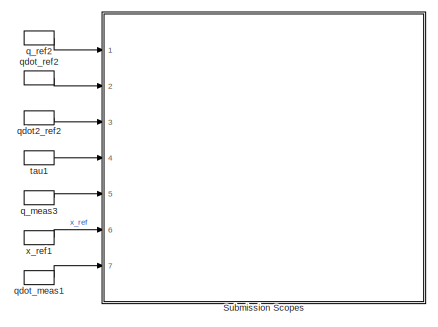
[diagram: Scopes - part 1/3, top right region]
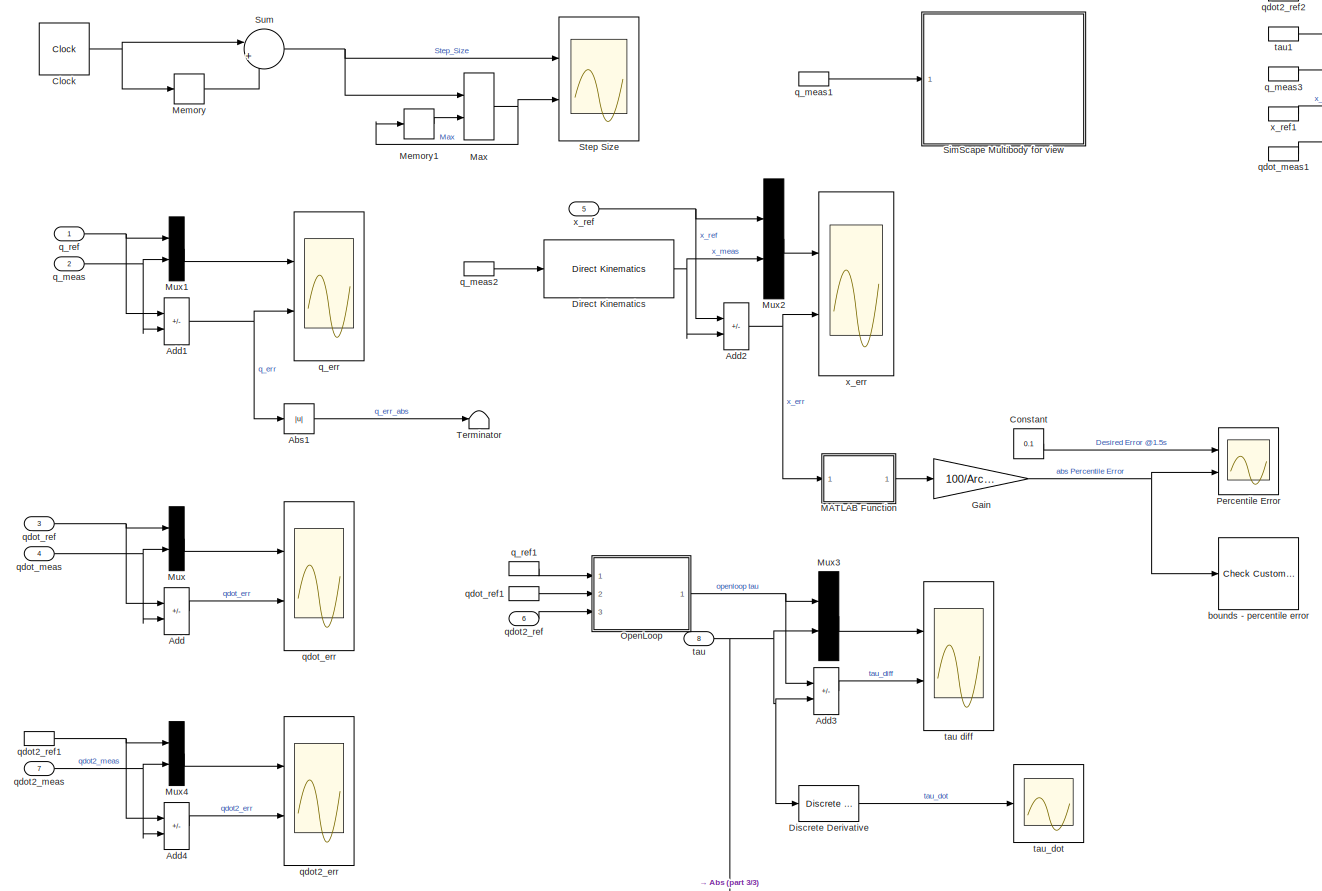
[diagram: Scopes - part 2/3, full width, middle band]
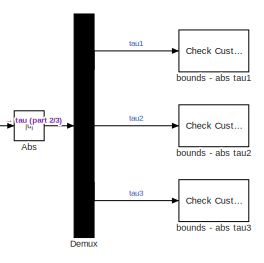
[diagram: Scopes - part 3/3, bottom center region]
BLOCK [SubSystem] Scopes
  Ports = [8]
  RequestExecContextInheritance = off
  TreatAsAtomicUnit = on
BLOCK [Abs] Scopes/Abs
  SaturateOnIntegerOverflow = off
BLOCK [Abs] Scopes/Abs1
  SaturateOnIntegerOverflow = off
BLOCK [Sum] Scopes/Add
  IconShape = rectangular
  Inputs = +-
  Ports = [2, 1]
BLOCK [Sum] Scopes/Add1
  IconShape = rectangular
  Inputs = +-
  Ports = [2, 1]
BLOCK [Sum] Scopes/Add2
  IconShape = rectangular
  Inputs = +-
  Ports = [2, 1]
BLOCK [Sum] Scopes/Add3
  IconShape = rectangular
  Inputs = +-
  Ports = [2, 1]
BLOCK [Sum] Scopes/Add4
  IconShape = rectangular
  Inputs = +-
  Ports = [2, 1]
BLOCK [Clock] Scopes/Clock
BLOCK [Constant] Scopes/Constant
  Value = 0.1
BLOCK [Demux] Scopes/Demux
  Outputs = 3
  Ports = [1, 3]
BLOCK [Reference] Scopes/Direct Kinematics  REF=RRProbotLibrary/Functions/Direct Kinematics
  Ports = [1, 1]
  SourceBlock = RRProbotLibrary/Functions/Direct Kinematics
  SourceProductName = RRProbotLibrary
BLOCK [Reference] Scopes/Discrete Derivative  REF=simulink/Discrete/Discrete Derivative
  Ports = [1, 1]
  SourceBlock = simulink/Discrete/Discrete Derivative
  SourceProductBaseCode = SL
  SourceType = Discrete Derivative
BLOCK [Gain] Scopes/Gain
  Gain = 100/ArcLength
BLOCK [SubSystem] Scopes/MATLAB Function
  ErrorFcn = Stateflow.Translate.translate
  PermitHierarchicalResolution = ExplicitOnly
  Ports = [1, 1]
  RequestExecContextInheritance = off
  SFBlockType = MATLAB Function
  TreatAsAtomicUnit = on
BLOCK [Demux] Scopes/MATLAB Function/ Demux 
  Outputs = 1
  Ports = [1, 1]
BLOCK [S-Function] Scopes/MATLAB Function/ SFunction 
  EnableBusSupport = on
  FunctionName = sf_sfun
  PortCounts = [1 2]
  Ports = [1, 2]
  SFcnIsStateOwnerBlock = off
  SFunctionDeploymentMode = off
  Tag = Stateflow S-Function 2
BLOCK [Terminator] Scopes/MATLAB Function/ Terminator 
BLOCK [Inport] Scopes/MATLAB Function/u
BLOCK [Outport] Scopes/MATLAB Function/y
BLOCK [MinMax] Scopes/Max
  Function = max
  Inputs = 2
  Ports = [2, 1]
BLOCK [Memory] Scopes/Memory
BLOCK [Memory] Scopes/Memory1
BLOCK [Mux] Scopes/Mux
  DisplayOption = bar
  Inputs = 2
  Ports = [2, 1]
BLOCK [Mux] Scopes/Mux1
  DisplayOption = bar
  Inputs = 2
  Ports = [2, 1]
BLOCK [Mux] Scopes/Mux2
  DisplayOption = bar
  Inputs = 2
  Ports = [2, 1]
BLOCK [Mux] Scopes/Mux3
  DisplayOption = bar
  Inputs = 2
  Ports = [2, 1]
BLOCK [Mux] Scopes/Mux4
  DisplayOption = bar
  Inputs = 2
  Ports = [2, 1]
BLOCK [SubSystem] Scopes/OpenLoop
  Ports = [3, 1]
  RequestExecContextInheritance = off
  VariantControl = Choice0
BLOCK [Reference] Scopes/OpenLoop/Compute C  REF=RRProbotLibrary/Functions/Compute C
  Ports = [2, 1]
  SourceBlock = RRProbotLibrary/Functions/Compute C
  SourceProductName = RRProbotLibrary
BLOCK [Reference] Scopes/OpenLoop/Compute G  REF=RRProbotLibrary/Functions/Compute G
  Ports = [1, 1]
  SourceBlock = RRProbotLibrary/Functions/Compute G
  SourceProductName = RRProbotLibrary
BLOCK [Reference] Scopes/OpenLoop/Compute H  REF=RRProbotLibrary/Functions/Compute H
  Ports = [1, 1]
  SourceBlock = RRProbotLibrary/Functions/Compute H
  SourceProductName = RRProbotLibrary
BLOCK [Product] Scopes/OpenLoop/Matrix Multiply
  Multiplication = Matrix(*)
  Ports = [2, 1]
BLOCK [Product] Scopes/OpenLoop/Matrix Multiply1
  Multiplication = Matrix(*)
  Ports = [2, 1]
BLOCK [Sum] Scopes/OpenLoop/Sum1
  Inputs = ++|
  NameLocation = left
  Ports = [2, 1]
BLOCK [Sum] Scopes/OpenLoop/Sum4
  Inputs = ++|
  Ports = [2, 1]
BLOCK [Inport] Scopes/OpenLoop/q_ref
  PortDimensions = 3
BLOCK [InportShadow] Scopes/OpenLoop/q_ref1
  PortDimensions = 3
BLOCK [InportShadow] Scopes/OpenLoop/q_ref2
  PortDimensions = 3
BLOCK [Inport] Scopes/OpenLoop/qdot2_ref
  Port = 3
BLOCK [Inport] Scopes/OpenLoop/qdot_ref
  Port = 2
  PortDimensions = 3
BLOCK [InportShadow] Scopes/OpenLoop/qdot_ref1
  Port = 2
  PortDimensions = 3
BLOCK [Outport] Scopes/OpenLoop/tau
BLOCK [Scope] Scopes/Percentile Error
  Floating = off
  NumInputPorts = 2
  Ports = [2]
  ScopeSpecificationString = Simulink.scopes.TimeScopeBlockCfg('CurrentConfiguration', extmgr.ConfigurationSet(extmgr.Configuration('Core','General UI',true),extmgr.Configuration('Core','Source UI',true),extmgr.Configuration('Sources','WiredSimulink',true,'DataLoggingVariableName','ScopeData1'),extmgr.Configuration('Visuals','Time Domain',true,'SerializedDisplays',{struct('MinYLimReal','-1.48083','MaxYLimReal','1.02368','YLab...<+1506ch>
BLOCK [SubSystem] Scopes/SimScape Multibody for view
  Commented = on
  Ports = [1]
  RequestExecContextInheritance = off
BLOCK [Reference] Scopes/SimScape Multibody for view/H  REF=sm_lib/Body Elements/Cylindrical Solid
  Ports = [0, 0, 0, 0, 0, 1, 1]
  SourceBlock = sm_lib/Body Elements/Cylindrical Solid
  SourceProductBaseCode = MS
  SourceType = Cylindrical Solid
BLOCK [Reference] Scopes/SimScape Multibody for view/L  REF=sm_lib/Body Elements/Cylindrical Solid
  Ports = [0, 0, 0, 0, 0, 1, 1]
  SourceBlock = sm_lib/Body Elements/Cylindrical Solid
  SourceProductBaseCode = MS
  SourceType = Cylindrical Solid
BLOCK [Reference] Scopes/SimScape Multibody for view/L1  REF=sm_lib/Body Elements/Cylindrical Solid
  Ports = [0, 0, 0, 0, 0, 1]
  SourceBlock = sm_lib/Body Elements/Cylindrical Solid
  SourceProductBaseCode = MS
  SourceType = Cylindrical Solid
BLOCK [Reference] Scopes/SimScape Multibody for view/Rigid Transform  REF=sm_lib/Frames and
Transforms/Rigid
Transform
  Ports = [0, 0, 0, 0, 0, 1, 1]
  SourceBlock = sm_lib/Frames and\nTransforms/Rigid\nTransform
  SourceProductBaseCode = MS
  SourceType = Rigid\nTransform
BLOCK [Reference] Scopes/SimScape Multibody for view/Rigid Transform1  REF=sm_lib/Frames and
Transforms/Rigid
Transform
  Ports = [0, 0, 0, 0, 0, 1, 1]
  SourceBlock = sm_lib/Frames and\nTransforms/Rigid\nTransform
  SourceProductBaseCode = MS
  SourceType = Rigid\nTransform
BLOCK [Selector] Scopes/SimScape Multibody for view/Selector
  IndexOptions = Index vector (dialog)
  Indices = 1
  InputPortWidth = 3
  OutputSizes = 1
  Ports = [1, 1]
BLOCK [Selector] Scopes/SimScape Multibody for view/Selector1
  IndexOptions = Index vector (dialog)
  Indices = 2
  InputPortWidth = 3
  OutputSizes = 1
  Ports = [1, 1]
BLOCK [Selector] Scopes/SimScape Multibody for view/Selector2
  IndexOptions = Index vector (dialog)
  Indices = 3
  InputPortWidth = 3
  OutputSizes = 1
  Ports = [1, 1]
BLOCK [Reference] Scopes/SimScape Multibody for view/Simulink-PS Converter  REF=nesl_utility/Simulink-PS
Converter
  Ports = [1, 0, 0, 0, 0, 0, 1]
  SourceBlock = nesl_utility/Simulink-PS\nConverter
  SourceProductBaseCode = SS
  SourceType = Simulink-PS\nConverter
BLOCK [Reference] Scopes/SimScape Multibody for view/Simulink-PS Converter1  REF=nesl_utility/Simulink-PS
Converter
  Ports = [1, 0, 0, 0, 0, 0, 1]
  SourceBlock = nesl_utility/Simulink-PS\nConverter
  SourceProductBaseCode = SS
  SourceType = Simulink-PS\nConverter
BLOCK [Reference] Scopes/SimScape Multibody for view/Simulink-PS Converter2  REF=nesl_utility/Simulink-PS
Converter
  Ports = [1, 0, 0, 0, 0, 0, 1]
  SourceBlock = nesl_utility/Simulink-PS\nConverter
  SourceProductBaseCode = SS
  SourceType = Simulink-PS\nConverter
BLOCK [Reference] Scopes/SimScape Multibody for view/Solver Configuration  REF=nesl_utility/Solver
Configuration
  Ports = [0, 0, 0, 0, 0, 0, 1]
  SourceBlock = nesl_utility/Solver\nConfiguration
  SourceProductBaseCode = SS
  SourceType = Solver\nConfiguration
BLOCK [Reference] Scopes/SimScape Multibody for view/Spherical Solid  REF=sm_lib/Body Elements/Spherical Solid
  NameLocation = top
  Ports = [0, 0, 0, 0, 0, 0, 1]
  SourceBlock = sm_lib/Body Elements/Spherical Solid
  SourceProductBaseCode = MS
  SourceType = Spherical Solid
BLOCK [Reference] Scopes/SimScape Multibody for view/World Frame  REF=sm_lib/Frames and
Transforms/World Frame
  Ports = [0, 0, 0, 0, 0, 0, 1]
  SourceBlock = sm_lib/Frames and\nTransforms/World Frame
  SourceProductBaseCode = MS
  SourceType = World Frame
BLOCK [Reference] Scopes/SimScape Multibody for view/d3  REF=sm_lib/Joints/Prismatic
Joint
  Ports = [0, 0, 0, 0, 0, 2, 1]
  SourceBlock = sm_lib/Joints/Prismatic\nJoint
  SourceProductBaseCode = MS
  SourceType = Prismatic\nJoint
BLOCK [Inport] Scopes/SimScape Multibody for view/q
BLOCK [InportShadow] Scopes/SimScape Multibody for view/q1
BLOCK [InportShadow] Scopes/SimScape Multibody for view/q2
BLOCK [Reference] Scopes/SimScape Multibody for view/theta1  REF=sm_lib/Joints/Revolute Joint
  Ports = [0, 0, 0, 0, 0, 2, 1]
  SourceBlock = sm_lib/Joints/Revolute Joint
  SourceProductBaseCode = MS
  SourceType = Revolute Joint
BLOCK [Reference] Scopes/SimScape Multibody for view/theta2  REF=sm_lib/Joints/Revolute Joint
  Ports = [0, 0, 0, 0, 0, 2, 1]
  SourceBlock = sm_lib/Joints/Revolute Joint
  SourceProductBaseCode = MS
  SourceType = Revolute Joint
BLOCK [Scope] Scopes/Step Size
  Floating = off
  NumInputPorts = 2
  Ports = [2]
  ScopeSpecificationString = Simulink.scopes.TimeScopeBlockCfg('CurrentConfiguration', extmgr.ConfigurationSet(extmgr.Configuration('Core','General UI',true),extmgr.Configuration('Core','Source UI',true),extmgr.Configuration('Sources','WiredSimulink',true),extmgr.Configuration('Visuals','Time Domain',true,'SerializedDisplays',{struct('MinYLimReal','-0.0000001','MaxYLimReal','0.0000011','YLabelReal','','MinYLimMag','0.0000000'...<+1569ch>
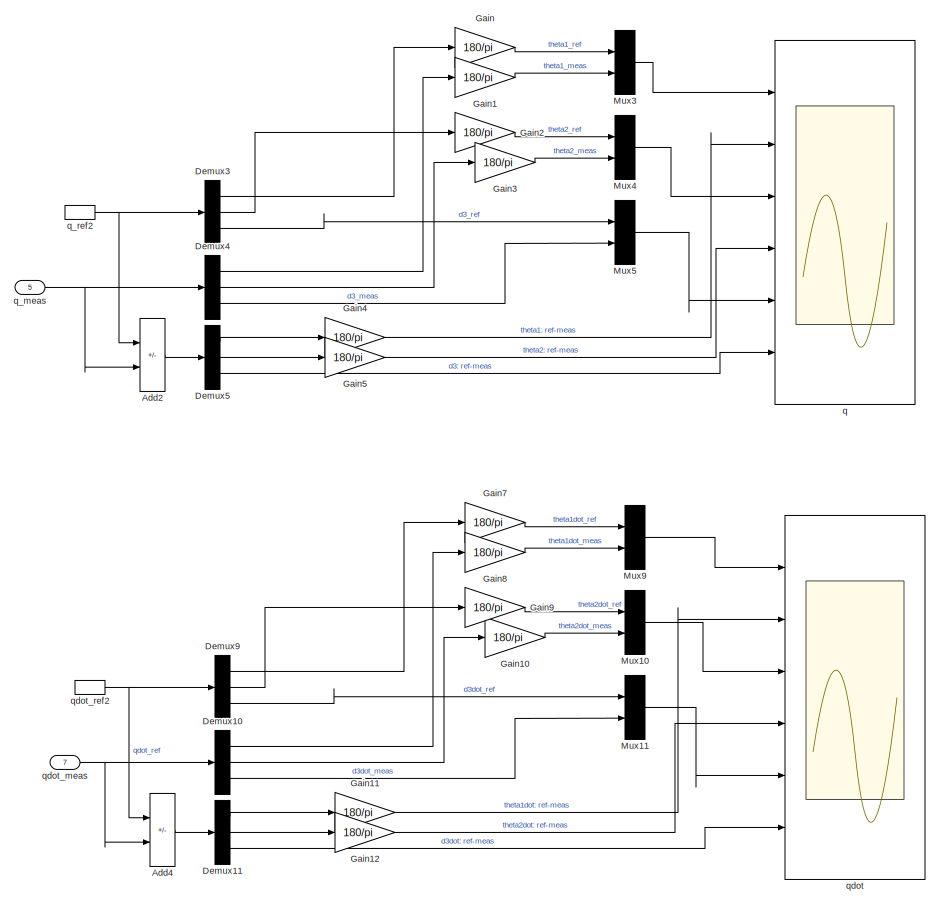
[diagram: Scopes/Submission Scopes - part 1/2, left side, full height]
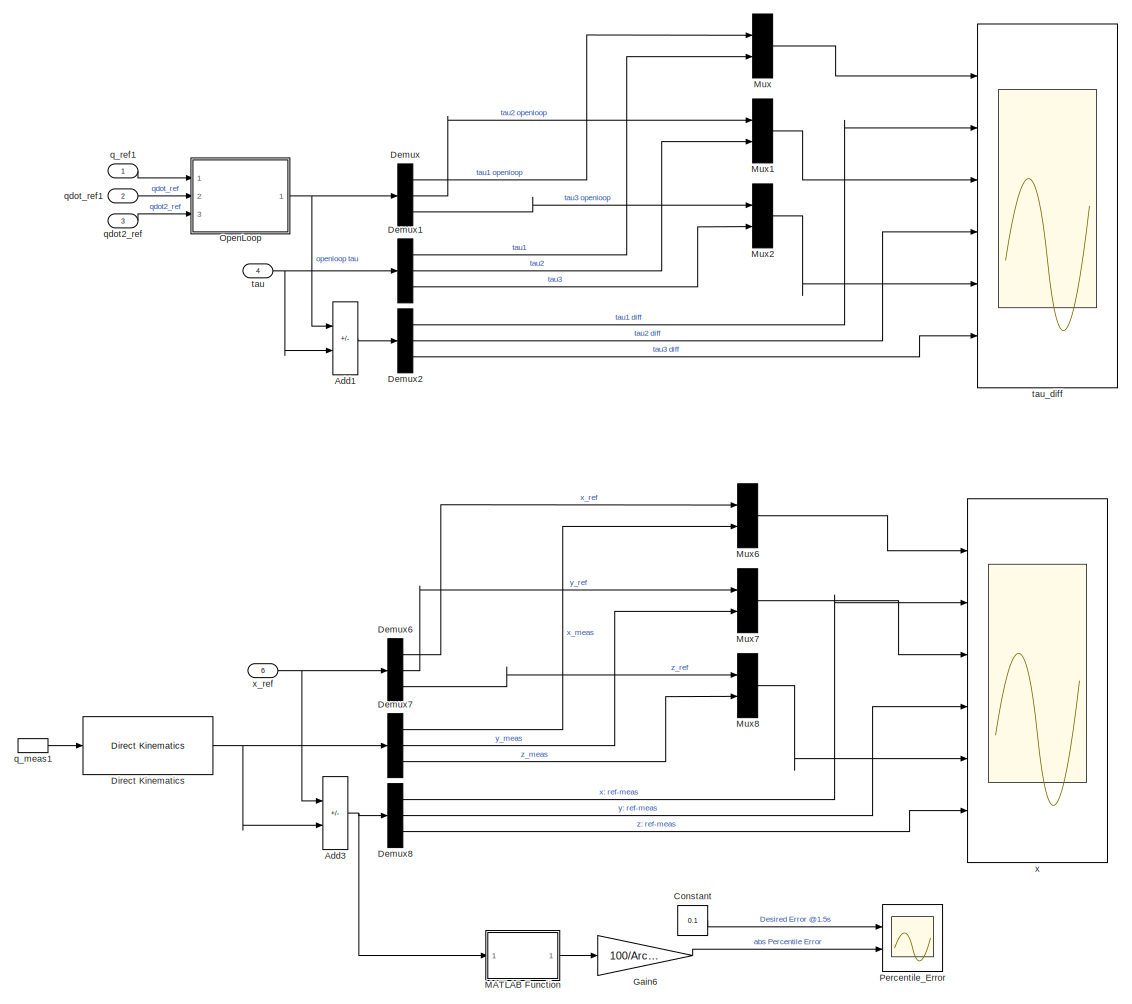
[diagram: Scopes/Submission Scopes - part 2/2, right side, full height]
BLOCK [SubSystem] Scopes/Submission Scopes
  Ports = [7]
  RequestExecContextInheritance = off
BLOCK [Sum] Scopes/Submission Scopes/Add1
  IconShape = rectangular
  Inputs = +-
  Ports = [2, 1]
BLOCK [Sum] Scopes/Submission Scopes/Add2
  IconShape = rectangular
  Inputs = +-
  Ports = [2, 1]
BLOCK [Sum] Scopes/Submission Scopes/Add3
  IconShape = rectangular
  Inputs = +-
  Ports = [2, 1]
BLOCK [Sum] Scopes/Submission Scopes/Add4
  IconShape = rectangular
  Inputs = +-
  Ports = [2, 1]
BLOCK [Constant] Scopes/Submission Scopes/Constant
  Value = 0.1
BLOCK [Demux] Scopes/Submission Scopes/Demux
  Outputs = 3
  Ports = [1, 3]
BLOCK [Demux] Scopes/Submission Scopes/Demux1
  Outputs = 3
  Ports = [1, 3]
BLOCK [Demux] Scopes/Submission Scopes/Demux10
  Outputs = 3
  Ports = [1, 3]
BLOCK [Demux] Scopes/Submission Scopes/Demux11
  Outputs = 3
  Ports = [1, 3]
BLOCK [Demux] Scopes/Submission Scopes/Demux2
  Outputs = 3
  Ports = [1, 3]
BLOCK [Demux] Scopes/Submission Scopes/Demux3
  Outputs = 3
  Ports = [1, 3]
BLOCK [Demux] Scopes/Submission Scopes/Demux4
  Outputs = 3
  Ports = [1, 3]
BLOCK [Demux] Scopes/Submission Scopes/Demux5
  Outputs = 3
  Ports = [1, 3]
BLOCK [Demux] Scopes/Submission Scopes/Demux6
  Outputs = 3
  Ports = [1, 3]
BLOCK [Demux] Scopes/Submission Scopes/Demux7
  Outputs = 3
  Ports = [1, 3]
BLOCK [Demux] Scopes/Submission Scopes/Demux8
  Outputs = 3
  Ports = [1, 3]
BLOCK [Demux] Scopes/Submission Scopes/Demux9
  Outputs = 3
  Ports = [1, 3]
BLOCK [Reference] Scopes/Submission Scopes/Direct Kinematics  REF=RRProbotLibrary/Functions/Direct Kinematics
  Ports = [1, 1]
  SourceBlock = RRProbotLibrary/Functions/Direct Kinematics
  SourceProductName = RRProbotLibrary
BLOCK [Gain] Scopes/Submission Scopes/Gain
  Gain = 180/pi
BLOCK [Gain] Scopes/Submission Scopes/Gain1
  Gain = 180/pi
BLOCK [Gain] Scopes/Submission Scopes/Gain10
  Gain = 180/pi
BLOCK [Gain] Scopes/Submission Scopes/Gain11
  Gain = 180/pi
BLOCK [Gain] Scopes/Submission Scopes/Gain12
  Gain = 180/pi
BLOCK [Gain] Scopes/Submission Scopes/Gain2
  Gain = 180/pi
BLOCK [Gain] Scopes/Submission Scopes/Gain3
  Gain = 180/pi
BLOCK [Gain] Scopes/Submission Scopes/Gain4
  Gain = 180/pi
BLOCK [Gain] Scopes/Submission Scopes/Gain5
  Gain = 180/pi
BLOCK [Gain] Scopes/Submission Scopes/Gain6
  Gain = 100/ArcLength
BLOCK [Gain] Scopes/Submission Scopes/Gain7
  Gain = 180/pi
BLOCK [Gain] Scopes/Submission Scopes/Gain8
  Gain = 180/pi
BLOCK [Gain] Scopes/Submission Scopes/Gain9
  Gain = 180/pi
BLOCK [SubSystem] Scopes/Submission Scopes/MATLAB Function
  ErrorFcn = Stateflow.Translate.translate
  PermitHierarchicalResolution = ExplicitOnly
  Ports = [1, 1]
  RequestExecContextInheritance = off
  SFBlockType = MATLAB Function
  TreatAsAtomicUnit = on
BLOCK [Demux] Scopes/Submission Scopes/MATLAB Function/ Demux 
  Outputs = 1
  Ports = [1, 1]
BLOCK [S-Function] Scopes/Submission Scopes/MATLAB Function/ SFunction 
  EnableBusSupport = on
  FunctionName = sf_sfun
  PortCounts = [1 2]
  Ports = [1, 2]
  SFcnIsStateOwnerBlock = off
  SFunctionDeploymentMode = off
  Tag = Stateflow S-Function 5
BLOCK [Terminator] Scopes/Submission Scopes/MATLAB Function/ Terminator 
BLOCK [Inport] Scopes/Submission Scopes/MATLAB Function/u
BLOCK [Outport] Scopes/Submission Scopes/MATLAB Function/y
BLOCK [Mux] Scopes/Submission Scopes/Mux
  DisplayOption = bar
  Inputs = 2
  Ports = [2, 1]
BLOCK [Mux] Scopes/Submission Scopes/Mux1
  DisplayOption = bar
  Inputs = 2
  Ports = [2, 1]
BLOCK [Mux] Scopes/Submission Scopes/Mux10
  DisplayOption = bar
  Inputs = 2
  Ports = [2, 1]
BLOCK [Mux] Scopes/Submission Scopes/Mux11
  DisplayOption = bar
  Inputs = 2
  Ports = [2, 1]
BLOCK [Mux] Scopes/Submission Scopes/Mux2
  DisplayOption = bar
  Inputs = 2
  Ports = [2, 1]
BLOCK [Mux] Scopes/Submission Scopes/Mux3
  DisplayOption = bar
  Inputs = 2
  Ports = [2, 1]
BLOCK [Mux] Scopes/Submission Scopes/Mux4
  DisplayOption = bar
  Inputs = 2
  Ports = [2, 1]
BLOCK [Mux] Scopes/Submission Scopes/Mux5
  DisplayOption = bar
  Inputs = 2
  Ports = [2, 1]
BLOCK [Mux] Scopes/Submission Scopes/Mux6
  DisplayOption = bar
  Inputs = 2
  Ports = [2, 1]
BLOCK [Mux] Scopes/Submission Scopes/Mux7
  DisplayOption = bar
  Inputs = 2
  Ports = [2, 1]
BLOCK [Mux] Scopes/Submission Scopes/Mux8
  DisplayOption = bar
  Inputs = 2
  Ports = [2, 1]
BLOCK [Mux] Scopes/Submission Scopes/Mux9
  DisplayOption = bar
  Inputs = 2
  Ports = [2, 1]
BLOCK [SubSystem] Scopes/Submission Scopes/OpenLoop
  Ports = [3, 1]
  RequestExecContextInheritance = off
  VariantControl = Choice0
BLOCK [Reference] Scopes/Submission Scopes/OpenLoop/Compute C  REF=RRProbotLibrary/Functions/Compute C
  Ports = [2, 1]
  SourceBlock = RRProbotLibrary/Functions/Compute C
  SourceProductName = RRProbotLibrary
BLOCK [Reference] Scopes/Submission Scopes/OpenLoop/Compute G  REF=RRProbotLibrary/Functions/Compute G
  Ports = [1, 1]
  SourceBlock = RRProbotLibrary/Functions/Compute G
  SourceProductName = RRProbotLibrary
BLOCK [Reference] Scopes/Submission Scopes/OpenLoop/Compute H  REF=RRProbotLibrary/Functions/Compute H
  Ports = [1, 1]
  SourceBlock = RRProbotLibrary/Functions/Compute H
  SourceProductName = RRProbotLibrary
BLOCK [Product] Scopes/Submission Scopes/OpenLoop/Matrix Multiply
  Multiplication = Matrix(*)
  Ports = [2, 1]
BLOCK [Product] Scopes/Submission Scopes/OpenLoop/Matrix Multiply1
  Multiplication = Matrix(*)
  Ports = [2, 1]
BLOCK [Sum] Scopes/Submission Scopes/OpenLoop/Sum1
  Inputs = ++|
  NameLocation = left
  Ports = [2, 1]
BLOCK [Sum] Scopes/Submission Scopes/OpenLoop/Sum4
  Inputs = ++|
  Ports = [2, 1]
BLOCK [Inport] Scopes/Submission Scopes/OpenLoop/q_ref
  PortDimensions = 3
BLOCK [InportShadow] Scopes/Submission Scopes/OpenLoop/q_ref1
  PortDimensions = 3
BLOCK [InportShadow] Scopes/Submission Scopes/OpenLoop/q_ref2
  PortDimensions = 3
BLOCK [Inport] Scopes/Submission Scopes/OpenLoop/qdot2_ref
  Port = 3
BLOCK [Inport] Scopes/Submission Scopes/OpenLoop/qdot_ref
  Port = 2
  PortDimensions = 3
BLOCK [InportShadow] Scopes/Submission Scopes/OpenLoop/qdot_ref1
  Port = 2
  PortDimensions = 3
BLOCK [Outport] Scopes/Submission Scopes/OpenLoop/tau
BLOCK [Scope] Scopes/Submission Scopes/Percentile_Error
  Floating = off
  NumInputPorts = 2
  Ports = [2]
  ScopeSpecificationString = Simulink.scopes.TimeScopeBlockCfg('CurrentConfiguration', extmgr.ConfigurationSet(extmgr.Configuration('Core','General UI',true),extmgr.Configuration('Core','Source UI',true),extmgr.Configuration('Sources','WiredSimulink',true,'DataLoggingVariableName','ScopeData2'),extmgr.Configuration('Visuals','Time Domain',true,'SerializedDisplays',{struct('MinYLimReal','-4.56708','MaxYLimReal','41.76676','YLa...<+1504ch>
BLOCK [Scope] Scopes/Submission Scopes/q
  Floating = off
  NumInputPorts = 6
  Ports = [6]
  ScopeSpecificationString = Simulink.scopes.TimeScopeBlockCfg('CurrentConfiguration', extmgr.ConfigurationSet(extmgr.Configuration('Core','General UI',true),extmgr.Configuration('Core','Source UI',true),extmgr.Configuration('Sources','WiredSimulink',true,'DataLoggingVariableName','ScopeData1'),extmgr.Configuration('Visuals','Time Domain',true,'SerializedDisplays',{struct('MinYLimReal','39.49457','MaxYLimReal','47.13477','YLa...<+5069ch>
BLOCK [Inport] Scopes/Submission Scopes/q_meas
  Port = 5
BLOCK [InportShadow] Scopes/Submission Scopes/q_meas1
  Port = 5
BLOCK [Inport] Scopes/Submission Scopes/q_ref1
BLOCK [InportShadow] Scopes/Submission Scopes/q_ref2
BLOCK [Scope] Scopes/Submission Scopes/qdot
  Floating = off
  NumInputPorts = 6
  Ports = [6]
  ScopeSpecificationString = Simulink.scopes.TimeScopeBlockCfg('CurrentConfiguration', extmgr.ConfigurationSet(extmgr.Configuration('Core','General UI',true),extmgr.Configuration('Core','Source UI',true),extmgr.Configuration('Sources','WiredSimulink',true,'DataLoggingVariableName','ScopeData1'),extmgr.Configuration('Visuals','Time Domain',true,'SerializedDisplays',{struct('MinYLimReal','-28.278','MaxYLimReal','35.88662','YLab...<+5113ch>
BLOCK [Inport] Scopes/Submission Scopes/qdot2_ref
  Port = 3
BLOCK [Inport] Scopes/Submission Scopes/qdot_meas
  Port = 7
BLOCK [Inport] Scopes/Submission Scopes/qdot_ref1
  Port = 2
BLOCK [InportShadow] Scopes/Submission Scopes/qdot_ref2
  Port = 2
BLOCK [Inport] Scopes/Submission Scopes/tau
  Port = 4
BLOCK [Scope] Scopes/Submission Scopes/tau_diff
  Floating = off
  NumInputPorts = 6
  Ports = [6]
  ScopeSpecificationString = Simulink.scopes.TimeScopeBlockCfg('CurrentConfiguration', extmgr.ConfigurationSet(extmgr.Configuration('Core','General UI',true),extmgr.Configuration('Core','Source UI',true),extmgr.Configuration('Sources','WiredSimulink',true,'DataLoggingVariableName','ScopeData1'),extmgr.Configuration('Visuals','Time Domain',true,'SerializedDisplays',{struct('MinYLimReal','-0.56202','MaxYLimReal','0.26619','YLab...<+5033ch>
BLOCK [Scope] Scopes/Submission Scopes/x
  Floating = off
  NumInputPorts = 6
  Ports = [6]
  ScopeSpecificationString = Simulink.scopes.TimeScopeBlockCfg('CurrentConfiguration', extmgr.ConfigurationSet(extmgr.Configuration('Core','General UI',true),extmgr.Configuration('Core','Source UI',true),extmgr.Configuration('Sources','WiredSimulink',true,'DataLoggingVariableName','ScopeData3'),extmgr.Configuration('Visuals','Time Domain',true,'SerializedDisplays',{struct('MinYLimReal','0.08104','MaxYLimReal','0.26878','YLabe...<+5006ch>
BLOCK [Inport] Scopes/Submission Scopes/x_ref
  Port = 6
BLOCK [Sum] Scopes/Sum
  Inputs = |+-
  Ports = [2, 1]
BLOCK [Terminator] Scopes/Terminator
BLOCK [Reference] Scopes/bounds - abs tau1  REF=checkpacklib/Check Custom Bounds
  Commented = on
  InstantiateOnLoad = on
  Ports = [1]
  SourceBlock = checkpacklib/Check Custom Bounds
  SourceProductBaseCode = CT,ID,MT,SO
  SourceType = Checks_CustomBounds
BLOCK [Reference] Scopes/bounds - abs tau2  REF=checkpacklib/Check Custom Bounds
  Commented = on
  InstantiateOnLoad = on
  Ports = [1]
  SourceBlock = checkpacklib/Check Custom Bounds
  SourceProductBaseCode = CT,ID,MT,SO
  SourceType = Checks_CustomBounds
BLOCK [Reference] Scopes/bounds - abs tau3  REF=checkpacklib/Check Custom Bounds
  Commented = on
  InstantiateOnLoad = on
  Ports = [1]
  SourceBlock = checkpacklib/Check Custom Bounds
  SourceProductBaseCode = CT,ID,MT,SO
  SourceType = Checks_CustomBounds
BLOCK [Reference] Scopes/bounds - percentile error  REF=checkpacklib/Check Custom Bounds
  InstantiateOnLoad = on
  Ports = [1]
  SourceBlock = checkpacklib/Check Custom Bounds
  SourceProductBaseCode = CT,ID,MT,SO
  SourceType = Checks_CustomBounds
BLOCK [Scope] Scopes/q_err
  Floating = off
  NumInputPorts = 2
  Ports = [2]
  ScopeSpecificationString = Simulink.scopes.TimeScopeBlockCfg('CurrentConfiguration', extmgr.ConfigurationSet(extmgr.Configuration('Core','General UI',true),extmgr.Configuration('Core','Source UI',true),extmgr.Configuration('Sources','WiredSimulink',true,'DataLoggingVariableName','ScopeData4'),extmgr.Configuration('Visuals','Time Domain',true,'SerializedDisplays',{struct('MinYLimReal','-0.05416','MaxYLimReal','1.19459','YLab...<+2391ch>
BLOCK [Inport] Scopes/q_meas
  Port = 2
BLOCK [InportShadow] Scopes/q_meas1
  Port = 2
BLOCK [InportShadow] Scopes/q_meas2
  Port = 2
BLOCK [InportShadow] Scopes/q_meas3
  Port = 2
BLOCK [Inport] Scopes/q_ref
BLOCK [InportShadow] Scopes/q_ref1
BLOCK [InportShadow] Scopes/q_ref2
BLOCK [Scope] Scopes/qdot2_err
  Floating = off
  NumInputPorts = 2
  Ports = [2]
  ScopeSpecificationString = Simulink.scopes.TimeScopeBlockCfg('CurrentConfiguration', extmgr.ConfigurationSet(extmgr.Configuration('Core','General UI',true),extmgr.Configuration('Core','Source UI',true),extmgr.Configuration('Sources','WiredSimulink',true,'DataLoggingVariableName','ScopeData1'),extmgr.Configuration('Visuals','Time Domain',true,'SerializedDisplays',{struct('MinYLimReal','-54.5961','MaxYLimReal','182.72048','YL...<+2248ch>
BLOCK [Inport] Scopes/qdot2_meas
  Port = 7
BLOCK [Inport] Scopes/qdot2_ref
  Port = 6
BLOCK [InportShadow] Scopes/qdot2_ref1
  Port = 6
BLOCK [InportShadow] Scopes/qdot2_ref2
  Port = 6
BLOCK [Scope] Scopes/qdot_err
  Floating = off
  NumInputPorts = 2
  Ports = [2]
  ScopeSpecificationString = Simulink.scopes.TimeScopeBlockCfg('CurrentConfiguration', extmgr.ConfigurationSet(extmgr.Configuration('Core','General UI',true),extmgr.Configuration('Core','Source UI',true),extmgr.Configuration('Sources','WiredSimulink',true,'DataLoggingVariableName','ScopeData3'),extmgr.Configuration('Visuals','Time Domain',true,'SerializedDisplays',{struct('MinYLimReal','-0.03236','MaxYLimReal','0.04462','YLab...<+2324ch>
BLOCK [Inport] Scopes/qdot_meas
  Port = 4
BLOCK [InportShadow] Scopes/qdot_meas1
  Port = 4
BLOCK [Inport] Scopes/qdot_ref
  Port = 3
BLOCK [InportShadow] Scopes/qdot_ref1
  Port = 3
BLOCK [InportShadow] Scopes/qdot_ref2
  Port = 3
BLOCK [Inport] Scopes/tau
  Port = 8
BLOCK [Scope] Scopes/tau diff
  Floating = off
  NumInputPorts = 2
  Ports = [2]
  ScopeSpecificationString = Simulink.scopes.TimeScopeBlockCfg('CurrentConfiguration', extmgr.ConfigurationSet(extmgr.Configuration('Core','General UI',true),extmgr.Configuration('Core','Source UI',true),extmgr.Configuration('Sources','WiredSimulink',true,'DataLoggingVariableName','ScopeData2'),extmgr.Configuration('Visuals','Time Domain',true,'SerializedDisplays',{struct('MinYLimReal','-21.24039','MaxYLimReal','26.25912','YL...<+2320ch>
BLOCK [InportShadow] Scopes/tau1
  Port = 8
BLOCK [Scope] Scopes/tau_dot
  Floating = off
  NumInputPorts = 1
  Ports = [1]
  ScopeSpecificationString = Simulink.scopes.TimeScopeBlockCfg('CurrentConfiguration', extmgr.ConfigurationSet(extmgr.Configuration('Core','General UI',true),extmgr.Configuration('Core','Source UI',true),extmgr.Configuration('Sources','WiredSimulink',true,'DataLoggingVariableName','ScopeData5'),extmgr.Configuration('Visuals','Time Domain',true,'SerializedDisplays',{struct('MinYLimReal','-4956185.51414','MaxYLimReal','3413113....<+1523ch>
BLOCK [Scope] Scopes/x_err
  Floating = off
  NumInputPorts = 2
  Ports = [2]
  ScopeSpecificationString = Simulink.scopes.TimeScopeBlockCfg('CurrentConfiguration', extmgr.ConfigurationSet(extmgr.Configuration('Core','General UI',true),extmgr.Configuration('Core','Source UI',true),extmgr.Configuration('Sources','WiredSimulink',true),extmgr.Configuration('Visuals','Time Domain',true,'SerializedDisplays',{struct('MinYLimReal','-0.2125','MaxYLimReal','0.4125','YLabelReal','','MinYLimMag','0.00000','MaxYLi...<+2231ch>
BLOCK [Inport] Scopes/x_ref
  Port = 5
BLOCK [InportShadow] Scopes/x_ref1
  Port = 5
BLOCK [SubSystem] Sensor Analyzer
  Ports = [1, 3]
  RequestExecContextInheritance = off
  TreatAsAtomicUnit = on
BLOCK [Reference] Sensor Analyzer/LPF for qdot  REF=RRProbotLibrary/Blocks/LPF
  Ports = [1, 2]
  SourceBlock = RRProbotLibrary/Blocks/LPF
  SourceProductName = RRProbotLibrary
BLOCK [Reference] Sensor Analyzer/LPF1 for qdot2  REF=RRProbotLibrary/Blocks/LPF
  Ports = [1, 2]
  SourceBlock = RRProbotLibrary/Blocks/LPF
  SourceProductName = RRProbotLibrary
BLOCK [Reference] Sensor Analyzer/LPF2 for qdot2  REF=RRProbotLibrary/Blocks/LPF
  Ports = [1, 2]
  SourceBlock = RRProbotLibrary/Blocks/LPF
  SourceProductName = RRProbotLibrary
BLOCK [Terminator] Sensor Analyzer/Terminator1
BLOCK [Terminator] Sensor Analyzer/Terminator4
BLOCK [Terminator] Sensor Analyzer/Terminator5
BLOCK [Inport] Sensor Analyzer/q_SE
  PortDimensions = 3
BLOCK [Outport] Sensor Analyzer/q_meas
  PortDimensions = 3
BLOCK [Outport] Sensor Analyzer/qdot2_meas
  Port = 3
  PortDimensions = 3
BLOCK [Outport] Sensor Analyzer/qdot_meas
  Port = 2
  PortDimensions = 3
BLOCK [Terminator] Terminator
BLOCK [Terminator] Terminator1
BLOCK [Terminator] Terminator2
ANNOTATION High level Controllers/Adaptive Control: Links in these library block are disalbed to avoid bug where state writer doesnt recognize states within the block
ANNOTATION High level Controllers/MINMAX: Links in these library block are disalbed to avoid bug where state writer doesnt recognize states within the block
ANNOTATION Initialize Function: Initialize Plant and Sensor Analyzer States
LINE Digital Clock:1 -> Reference Builder:1
LINE From1:1 -> Scopes:1
LINE From2:1 -> Scopes:5
LINE From3:1 -> Scopes:4
LINE From4:1 -> Scopes:3
LINE From5:1 -> Scopes:6
LINE From6:1 -> Scopes:8
LINE From7:1 -> Scopes:7
LINE From:1 -> Scopes:2
LINE High level Controllers/Adaptive Control/Add:1 -> High level Controllers/Adaptive Control/Sum1:2
LINE High level Controllers/Adaptive Control/Compute Controller Inputs:1 -> High level Controllers/Adaptive Control/Gain2:1
LINE High level Controllers/Adaptive Control/Compute Controller Inputs:2 -> High level Controllers/Adaptive Control/Terminator:1
NET High level Controllers/Adaptive Control/Compute Controller Inputs:3 -> High level Controllers/Adaptive Control/Gain:1, High level Controllers/Adaptive Control/Predict M:2
NET High level Controllers/Adaptive Control/Compute Controller Inputs:4 -> High level Controllers/Adaptive Control/Compute FF0:3, High level Controllers/Adaptive Control/Compute Y:3
NET High level Controllers/Adaptive Control/Compute Controller Inputs:5 -> High level Controllers/Adaptive Control/Compute FF0:4, High level Controllers/Adaptive Control/Compute Y:4
LINE High level Controllers/Adaptive Control/Compute FF0:1 -> High level Controllers/Adaptive Control/Sum1:1
NET High level Controllers/Adaptive Control/Compute Y:1 -> High level Controllers/Adaptive Control/Predict M:1, High level Controllers/Adaptive Control/Product:1
LINE High level Controllers/Adaptive Control/Gain2:1 -> High level Controllers/Adaptive Control/Add:2
LINE High level Controllers/Adaptive Control/Gain:1 -> High level Controllers/Adaptive Control/Add:3
NET High level Controllers/Adaptive Control/Initialize Function/Constant1:1 -> High level Controllers/Adaptive Control/Initialize Function/MinJerk Trajectory Planner1:1, High level Controllers/Adaptive Control/Initialize Function/MinJerk Trajectory Planner:1
LINE High level Controllers/Adaptive Control/Initialize Function/Gain1:1 -> High level Controllers/Adaptive Control/Initialize Function/Sum1:1
LINE High level Controllers/Adaptive Control/Initialize Function/Inverse Kinematics1:1 -> High level Controllers/Adaptive Control/Initialize Function/Sum3:2
LINE High level Controllers/Adaptive Control/Initialize Function/Inverse Kinematics1:2 -> High level Controllers/Adaptive Control/Initialize Function/Sum1:2
LINE High level Controllers/Adaptive Control/Initialize Function/Inverse Kinematics1:3 -> High level Controllers/Adaptive Control/Initialize Function/Terminator1:1
LINE High level Controllers/Adaptive Control/Initialize Function/Inverse Kinematics:1 -> High level Controllers/Adaptive Control/Initialize Function/Sum3:1
LINE High level Controllers/Adaptive Control/Initialize Function/Inverse Kinematics:2 -> High level Controllers/Adaptive Control/Initialize Function/Terminator2:1
LINE High level Controllers/Adaptive Control/Initialize Function/Inverse Kinematics:3 -> High level Controllers/Adaptive Control/Initialize Function/Terminator3:1
LINE High level Controllers/Adaptive Control/Initialize Function/MinJerk Trajectory Planner1:1 -> High level Controllers/Adaptive Control/Initialize Function/Inverse Kinematics1:1
LINE High level Controllers/Adaptive Control/Initialize Function/MinJerk Trajectory Planner1:2 -> High level Controllers/Adaptive Control/Initialize Function/Inverse Kinematics1:2
LINE High level Controllers/Adaptive Control/Initialize Function/MinJerk Trajectory Planner1:3 -> High level Controllers/Adaptive Control/Initialize Function/Inverse Kinematics1:3
LINE High level Controllers/Adaptive Control/Initialize Function/MinJerk Trajectory Planner:1 -> High level Controllers/Adaptive Control/Initialize Function/Inverse Kinematics:1
LINE High level Controllers/Adaptive Control/Initialize Function/MinJerk Trajectory Planner:2 -> High level Controllers/Adaptive Control/Initialize Function/Inverse Kinematics:2
LINE High level Controllers/Adaptive Control/Initialize Function/MinJerk Trajectory Planner:3 -> High level Controllers/Adaptive Control/Initialize Function/Inverse Kinematics:3
LINE High level Controllers/Adaptive Control/Initialize Function/Sum1:1 -> High level Controllers/Adaptive Control/Initialize Function/State Writer:1
LINE High level Controllers/Adaptive Control/Initialize Function/Sum3:1 -> High level Controllers/Adaptive Control/Initialize Function/Gain1:1
LINE High level Controllers/Adaptive Control/Predict M/Constant:1 -> High level Controllers/Adaptive Control/Predict M/Mestimation:2
NET High level Controllers/Adaptive Control/Predict M/Gain:1 -> High level Controllers/Adaptive Control/Predict M/Saturation:1, High level Controllers/Adaptive Control/Predict M/Scope:1
NET High level Controllers/Adaptive Control/Predict M/Integrate for MEst:1 -> High level Controllers/Adaptive Control/Predict M/MEst:1, High level Controllers/Adaptive Control/Predict M/Mestimation:1
LINE High level Controllers/Adaptive Control/Predict M/MatrixMultiply:1 -> High level Controllers/Adaptive Control/Predict M/Gain:1
NET High level Controllers/Adaptive Control/Predict M/Saturation:1 -> High level Controllers/Adaptive Control/Predict M/Integrate for MEst:1, High level Controllers/Adaptive Control/Predict M/Scope:2
LINE High level Controllers/Adaptive Control/Predict M/Transpose:1 -> High level Controllers/Adaptive Control/Predict M/MatrixMultiply:1
LINE High level Controllers/Adaptive Control/Predict M/Y:1 -> High level Controllers/Adaptive Control/Predict M/Transpose:1
LINE High level Controllers/Adaptive Control/Predict M/s:1 -> High level Controllers/Adaptive Control/Predict M/MatrixMultiply:2
LINE High level Controllers/Adaptive Control/Predict M:1 -> High level Controllers/Adaptive Control/Product:2
LINE High level Controllers/Adaptive Control/Product:1 -> High level Controllers/Adaptive Control/Add:1
LINE High level Controllers/Adaptive Control/Sum1:1 -> High level Controllers/Adaptive Control/tau:1
LINE High level Controllers/Adaptive Control/q_meas1:1 -> High level Controllers/Adaptive Control/Compute FF0:1
LINE High level Controllers/Adaptive Control/q_meas2:1 -> High level Controllers/Adaptive Control/Compute Y:1
LINE High level Controllers/Adaptive Control/q_meas:1 -> High level Controllers/Adaptive Control/Compute Controller Inputs:3
LINE High level Controllers/Adaptive Control/q_ref:1 -> High level Controllers/Adaptive Control/Compute Controller Inputs:1
LINE High level Controllers/Adaptive Control/qdot_meas1:1 -> High level Controllers/Adaptive Control/Compute FF0:2
LINE High level Controllers/Adaptive Control/qdot_meas2:1 -> High level Controllers/Adaptive Control/Compute Y:2
LINE High level Controllers/Adaptive Control/qdot_meas:1 -> High level Controllers/Adaptive Control/Compute Controller Inputs:4
LINE High level Controllers/Adaptive Control/qdot_ref:1 -> High level Controllers/Adaptive Control/Compute Controller Inputs:2
LINE High level Controllers/Gravity Compensation + PD/Add:1 -> High level Controllers/Gravity Compensation + PD/Sum2:2
LINE High level Controllers/Gravity Compensation + PD/Compute G:1 -> High level Controllers/Gravity Compensation + PD/Sum2:1
LINE High level Controllers/Gravity Compensation + PD/Gain1:1 -> High level Controllers/Gravity Compensation + PD/Add:2
LINE High level Controllers/Gravity Compensation + PD/Gain:1 -> High level Controllers/Gravity Compensation + PD/Add:1
LINE High level Controllers/Gravity Compensation + PD/Sum1:1 -> High level Controllers/Gravity Compensation + PD/Gain1:1
LINE High level Controllers/Gravity Compensation + PD/Sum2:1 -> High level Controllers/Gravity Compensation + PD/tau:1
LINE High level Controllers/Gravity Compensation + PD/Sum:1 -> High level Controllers/Gravity Compensation + PD/Gain:1
LINE High level Controllers/Gravity Compensation + PD/q_meas2:1 -> High level Controllers/Gravity Compensation + PD/Compute G:1
LINE High level Controllers/Gravity Compensation + PD/q_meas:1 -> High level Controllers/Gravity Compensation + PD/Sum:2
LINE High level Controllers/Gravity Compensation + PD/q_ref:1 -> High level Controllers/Gravity Compensation + PD/Sum:1
LINE High level Controllers/Gravity Compensation + PD/qdot_meas:1 -> High level Controllers/Gravity Compensation + PD/Sum1:2
LINE High level Controllers/Gravity Compensation + PD/qdot_ref:1 -> High level Controllers/Gravity Compensation + PD/Sum1:1
LINE High level Controllers/Inverse Dynamics + PD/Add1:1 -> High level Controllers/Inverse Dynamics + PD/Matrix Multiply2:2
LINE High level Controllers/Inverse Dynamics + PD/Compute C:1 -> High level Controllers/Inverse Dynamics + PD/Matrix Multiply1:1
LINE High level Controllers/Inverse Dynamics + PD/Compute G:1 -> High level Controllers/Inverse Dynamics + PD/Sum3:1
LINE High level Controllers/Inverse Dynamics + PD/Compute H1:1 -> High level Controllers/Inverse Dynamics + PD/Matrix Multiply2:1
LINE High level Controllers/Inverse Dynamics + PD/Compute H:1 -> High level Controllers/Inverse Dynamics + PD/Matrix Multiply:1
LINE High level Controllers/Inverse Dynamics + PD/Gain1:1 -> High level Controllers/Inverse Dynamics + PD/Add1:2
LINE High level Controllers/Inverse Dynamics + PD/Gain:1 -> High level Controllers/Inverse Dynamics + PD/Add1:1
LINE High level Controllers/Inverse Dynamics + PD/Matrix Multiply1:1 -> High level Controllers/Inverse Dynamics + PD/Sum4:1
LINE High level Controllers/Inverse Dynamics + PD/Matrix Multiply2:1 -> High level Controllers/Inverse Dynamics + PD/Sum2:2
LINE High level Controllers/Inverse Dynamics + PD/Matrix Multiply:1 -> High level Controllers/Inverse Dynamics + PD/Sum4:2
LINE High level Controllers/Inverse Dynamics + PD/Sum1:1 -> High level Controllers/Inverse Dynamics + PD/Gain1:1
LINE High level Controllers/Inverse Dynamics + PD/Sum2:1 -> High level Controllers/Inverse Dynamics + PD/tau:1
LINE High level Controllers/Inverse Dynamics + PD/Sum3:1 -> High level Controllers/Inverse Dynamics + PD/Sum2:1
LINE High level Controllers/Inverse Dynamics + PD/Sum4:1 -> High level Controllers/Inverse Dynamics + PD/Sum3:2
LINE High level Controllers/Inverse Dynamics + PD/Sum:1 -> High level Controllers/Inverse Dynamics + PD/Gain:1
LINE High level Controllers/Inverse Dynamics + PD/q_meas1:1 -> High level Controllers/Inverse Dynamics + PD/Sum:2
LINE High level Controllers/Inverse Dynamics + PD/q_meas2:1 -> High level Controllers/Inverse Dynamics + PD/Compute G:1
LINE High level Controllers/Inverse Dynamics + PD/q_meas3:1 -> High level Controllers/Inverse Dynamics + PD/Compute C:1
LINE High level Controllers/Inverse Dynamics + PD/q_meas4:1 -> High level Controllers/Inverse Dynamics + PD/Compute H:1
LINE High level Controllers/Inverse Dynamics + PD/q_meas:1 -> High level Controllers/Inverse Dynamics + PD/Compute H1:1
LINE High level Controllers/Inverse Dynamics + PD/q_ref:1 -> High level Controllers/Inverse Dynamics + PD/Sum:1
LINE High level Controllers/Inverse Dynamics + PD/qdot2_ref:1 -> High level Controllers/Inverse Dynamics + PD/Matrix Multiply:2
LINE High level Controllers/Inverse Dynamics + PD/qdot_meas1:1 -> High level Controllers/Inverse Dynamics + PD/Matrix Multiply1:2
LINE High level Controllers/Inverse Dynamics + PD/qdot_meas2:1 -> High level Controllers/Inverse Dynamics + PD/Compute C:2
LINE High level Controllers/Inverse Dynamics + PD/qdot_meas:1 -> High level Controllers/Inverse Dynamics + PD/Sum1:2
LINE High level Controllers/Inverse Dynamics + PD/qdot_ref:1 -> High level Controllers/Inverse Dynamics + PD/Sum1:1
LINE High level Controllers/MINMAX/Compute Controller Inputs:1 -> High level Controllers/MINMAX/Compute eta_0:3
LINE High level Controllers/MINMAX/Compute Controller Inputs:2 -> High level Controllers/MINMAX/Terminator:1
NET High level Controllers/MINMAX/Compute Controller Inputs:3 -> High level Controllers/MINMAX/Compute rho:4, High level Controllers/MINMAX/Compute tau:2
NET High level Controllers/MINMAX/Compute Controller Inputs:4 -> High level Controllers/MINMAX/Compute eta_0:4, High level Controllers/MINMAX/Compute rho_wave:3
NET High level Controllers/MINMAX/Compute Controller Inputs:5 -> High level Controllers/MINMAX/Compute eta_0:5, High level Controllers/MINMAX/Compute rho_wave:4, High level Controllers/MINMAX/Scope:1
LINE High level Controllers/MINMAX/Compute eta_0/Compute FF0:1 -> High level Controllers/MINMAX/Compute eta_0/Sum:1
LINE High level Controllers/MINMAX/Compute eta_0/Gain1:1 -> High level Controllers/MINMAX/Compute eta_0/Sum:2
LINE High level Controllers/MINMAX/Compute eta_0/Sum:1 -> High level Controllers/MINMAX/Compute eta_0/eta_0:1
LINE High level Controllers/MINMAX/Compute eta_0/e:1 -> High level Controllers/MINMAX/Compute eta_0/Gain1:1
LINE High level Controllers/MINMAX/Compute eta_0/q_meas:1 -> High level Controllers/MINMAX/Compute eta_0/Compute FF0:1
LINE High level Controllers/MINMAX/Compute eta_0/qdot2_r:1 -> High level Controllers/MINMAX/Compute eta_0/Compute FF0:4
LINE High level Controllers/MINMAX/Compute eta_0/qdot_meas:1 -> High level Controllers/MINMAX/Compute eta_0/Compute FF0:2
LINE High level Controllers/MINMAX/Compute eta_0/qdot_r:1 -> High level Controllers/MINMAX/Compute eta_0/Compute FF0:3
LINE High level Controllers/MINMAX/Compute eta_0:1 -> High level Controllers/MINMAX/Compute rho:1
NET High level Controllers/MINMAX/Compute rho:1 -> High level Controllers/MINMAX/Compute tau:1, High level Controllers/MINMAX/Scope1:1
LINE High level Controllers/MINMAX/Compute rho_wave/Abs:1 -> High level Controllers/MINMAX/Compute rho_wave/Sum of Elements:1
LINE High level Controllers/MINMAX/Compute rho_wave/Compute Y:1 -> High level Controllers/MINMAX/Compute rho_wave/Abs:1
LINE High level Controllers/MINMAX/Compute rho_wave/Gain:1 -> High level Controllers/MINMAX/Compute rho_wave/rho_wave:1
LINE High level Controllers/MINMAX/Compute rho_wave/Sum of Elements:1 -> High level Controllers/MINMAX/Compute rho_wave/Gain:1
LINE High level Controllers/MINMAX/Compute rho_wave/q_meas:1 -> High level Controllers/MINMAX/Compute rho_wave/Compute Y:1
LINE High level Controllers/MINMAX/Compute rho_wave/qdot2_r:1 -> High level Controllers/MINMAX/Compute rho_wave/Compute Y:4
LINE High level Controllers/MINMAX/Compute rho_wave/qdot_meas:1 -> High level Controllers/MINMAX/Compute rho_wave/Compute Y:2
LINE High level Controllers/MINMAX/Compute rho_wave/qdot_r:1 -> High level Controllers/MINMAX/Compute rho_wave/Compute Y:3
LINE High level Controllers/MINMAX/Compute rho_wave:1 -> High level Controllers/MINMAX/Compute rho:2
LINE High level Controllers/MINMAX/Compute tau:1 -> High level Controllers/MINMAX/tau:1
LINE High level Controllers/MINMAX/From:1 -> High level Controllers/MINMAX/Compute rho:3
LINE High level Controllers/MINMAX/Initialize Function/Compute H:1 -> High level Controllers/MINMAX/Initialize Function/Compute MinMaxc:2
LINE High level Controllers/MINMAX/Initialize Function/Compute MinMaxc:1 -> High level Controllers/MINMAX/Initialize Function/c:1
NET High level Controllers/MINMAX/Initialize Function/Constant1:1 -> High level Controllers/MINMAX/Initialize Function/MinJerk Trajectory Planner1:1, High level Controllers/MINMAX/Initialize Function/MinJerk Trajectory Planner:1
LINE High level Controllers/MINMAX/Initialize Function/Gain1:1 -> High level Controllers/MINMAX/Initialize Function/Sum1:1
LINE High level Controllers/MINMAX/Initialize Function/Inverse Kinematics1:1 -> High level Controllers/MINMAX/Initialize Function/Sum3:2
LINE High level Controllers/MINMAX/Initialize Function/Inverse Kinematics1:2 -> High level Controllers/MINMAX/Initialize Function/Sum1:2
LINE High level Controllers/MINMAX/Initialize Function/Inverse Kinematics1:3 -> High level Controllers/MINMAX/Initialize Function/Terminator1:1
NET High level Controllers/MINMAX/Initialize Function/Inverse Kinematics:1 -> High level Controllers/MINMAX/Initialize Function/Compute H:1, High level Controllers/MINMAX/Initialize Function/Sum3:1
LINE High level Controllers/MINMAX/Initialize Function/Inverse Kinematics:2 -> High level Controllers/MINMAX/Initialize Function/Terminator2:1
LINE High level Controllers/MINMAX/Initialize Function/Inverse Kinematics:3 -> High level Controllers/MINMAX/Initialize Function/Terminator3:1
LINE High level Controllers/MINMAX/Initialize Function/MinJerk Trajectory Planner1:1 -> High level Controllers/MINMAX/Initialize Function/Inverse Kinematics1:1
LINE High level Controllers/MINMAX/Initialize Function/MinJerk Trajectory Planner1:2 -> High level Controllers/MINMAX/Initialize Function/Inverse Kinematics1:2
LINE High level Controllers/MINMAX/Initialize Function/MinJerk Trajectory Planner1:3 -> High level Controllers/MINMAX/Initialize Function/Inverse Kinematics1:3
LINE High level Controllers/MINMAX/Initialize Function/MinJerk Trajectory Planner:1 -> High level Controllers/MINMAX/Initialize Function/Inverse Kinematics:1
LINE High level Controllers/MINMAX/Initialize Function/MinJerk Trajectory Planner:2 -> High level Controllers/MINMAX/Initialize Function/Inverse Kinematics:2
LINE High level Controllers/MINMAX/Initialize Function/MinJerk Trajectory Planner:3 -> High level Controllers/MINMAX/Initialize Function/Inverse Kinematics:3
LINE High level Controllers/MINMAX/Initialize Function/Sum1:1 -> High level Controllers/MINMAX/Initialize Function/State Writer:1
NET High level Controllers/MINMAX/Initialize Function/Sum3:1 -> High level Controllers/MINMAX/Initialize Function/Compute MinMaxc:1, High level Controllers/MINMAX/Initialize Function/Gain1:1
NET High level Controllers/MINMAX/Initialize Function:1 -> High level Controllers/MINMAX/Display:1, High level Controllers/MINMAX/Goto:1
LINE High level Controllers/MINMAX/q_meas1:1 -> High level Controllers/MINMAX/Compute eta_0:1
LINE High level Controllers/MINMAX/q_meas2:1 -> High level Controllers/MINMAX/Compute rho_wave:1
LINE High level Controllers/MINMAX/q_meas:1 -> High level Controllers/MINMAX/Compute Controller Inputs:3
LINE High level Controllers/MINMAX/q_ref:1 -> High level Controllers/MINMAX/Compute Controller Inputs:1
LINE High level Controllers/MINMAX/qdot_meas1:1 -> High level Controllers/MINMAX/Compute eta_0:2
LINE High level Controllers/MINMAX/qdot_meas2:1 -> High level Controllers/MINMAX/Compute rho_wave:2
LINE High level Controllers/MINMAX/qdot_meas:1 -> High level Controllers/MINMAX/Compute Controller Inputs:4
LINE High level Controllers/MINMAX/qdot_ref:1 -> High level Controllers/MINMAX/Compute Controller Inputs:2
LINE High level Controllers/OpenLoop/Compute C:1 -> High level Controllers/OpenLoop/Matrix Multiply1:1
LINE High level Controllers/OpenLoop/Compute G:1 -> High level Controllers/OpenLoop/Sum3:1
LINE High level Controllers/OpenLoop/Compute H:1 -> High level Controllers/OpenLoop/Matrix Multiply:1
LINE High level Controllers/OpenLoop/Ground:1 -> High level Controllers/OpenLoop/Sum2:2
LINE High level Controllers/OpenLoop/Matrix Multiply1:1 -> High level Controllers/OpenLoop/Sum4:1
LINE High level Controllers/OpenLoop/Matrix Multiply:1 -> High level Controllers/OpenLoop/Sum4:2
LINE High level Controllers/OpenLoop/Sum2:1 -> High level Controllers/OpenLoop/tau:1
LINE High level Controllers/OpenLoop/Sum3:1 -> High level Controllers/OpenLoop/Sum2:1
LINE High level Controllers/OpenLoop/Sum4:1 -> High level Controllers/OpenLoop/Sum3:2
LINE High level Controllers/OpenLoop/q_ref1:1 -> High level Controllers/OpenLoop/Compute C:1
LINE High level Controllers/OpenLoop/q_ref2:1 -> High level Controllers/OpenLoop/Compute G:1
LINE High level Controllers/OpenLoop/q_ref:1 -> High level Controllers/OpenLoop/Compute H:1
LINE High level Controllers/OpenLoop/qdot2_ref:1 -> High level Controllers/OpenLoop/Matrix Multiply:2
LINE High level Controllers/OpenLoop/qdot_ref1:1 -> High level Controllers/OpenLoop/Matrix Multiply1:2
LINE High level Controllers/OpenLoop/qdot_ref:1 -> High level Controllers/OpenLoop/Compute C:2
LINE High level Controllers/PID/Add:1 -> High level Controllers/PID/tau:1
NET High level Controllers/PID/Discrete-Time Integrator:1 -> High level Controllers/PID/Add:1, High level Controllers/PID/Scope:1
LINE High level Controllers/PID/Gain1:1 -> High level Controllers/PID/Add:2
LINE High level Controllers/PID/Gain2:1 -> High level Controllers/PID/Add:3
LINE High level Controllers/PID/Gain:1 -> High level Controllers/PID/Discrete-Time Integrator:1
LINE High level Controllers/PID/Initialize Function/Compute G:1 -> High level Controllers/PID/Initialize Function/State Writer6:1
LINE High level Controllers/PID/Initialize Function/Constant1:1 -> High level Controllers/PID/Initialize Function/MinJerk Trajectory Planner:1
LINE High level Controllers/PID/Initialize Function/Inverse Kinematics:1 -> High level Controllers/PID/Initialize Function/Compute G:1
LINE High level Controllers/PID/Initialize Function/Inverse Kinematics:2 -> High level Controllers/PID/Initialize Function/Terminator2:1
LINE High level Controllers/PID/Initialize Function/Inverse Kinematics:3 -> High level Controllers/PID/Initialize Function/Terminator1:1
LINE High level Controllers/PID/Initialize Function/MinJerk Trajectory Planner:1 -> High level Controllers/PID/Initialize Function/Inverse Kinematics:1
LINE High level Controllers/PID/Initialize Function/MinJerk Trajectory Planner:2 -> High level Controllers/PID/Initialize Function/Inverse Kinematics:2
LINE High level Controllers/PID/Initialize Function/MinJerk Trajectory Planner:3 -> High level Controllers/PID/Initialize Function/Inverse Kinematics:3
LINE High level Controllers/PID/Saturation:1 -> High level Controllers/PID/Gain:1
LINE High level Controllers/PID/Sum1:1 -> High level Controllers/PID/Gain2:1
NET High level Controllers/PID/Sum:1 -> High level Controllers/PID/Gain1:1, High level Controllers/PID/Saturation:1
LINE High level Controllers/PID/q_meas:1 -> High level Controllers/PID/Sum:2
LINE High level Controllers/PID/q_ref:1 -> High level Controllers/PID/Sum:1
LINE High level Controllers/PID/qdot_meas:1 -> High level Controllers/PID/Sum1:2
LINE High level Controllers/PID/qdot_ref:1 -> High level Controllers/PID/Sum1:1
LINE High level Controllers:1 -> Saturation:1
LINE Initialize Function/Constant1:1 -> Initialize Function/MinJerk Trajectory Planner:1
NET Initialize Function/Inverse Kinematics:1 -> Initialize Function/State Writer1:1, Initialize Function/State Writer3:1
NET Initialize Function/Inverse Kinematics:2 -> Initialize Function/State Writer2:1, Initialize Function/State Writer4:1, Initialize Function/State Writer5:1
LINE Initialize Function/Inverse Kinematics:3 -> Initialize Function/Terminator:1
LINE Initialize Function/MinJerk Trajectory Planner:1 -> Initialize Function/Inverse Kinematics:1
LINE Initialize Function/MinJerk Trajectory Planner:2 -> Initialize Function/Inverse Kinematics:2
LINE Initialize Function/MinJerk Trajectory Planner:3 -> Initialize Function/Inverse Kinematics:3
LINE Plant/Compute C:1 -> Plant/Matrix Divide1:1
LINE Plant/Compute G:1 -> Plant/Sum2:1
LINE Plant/Compute H1:1 -> Plant/Divide1:1
LINE Plant/Compute J:1 -> Plant/Transpose:1
LINE Plant/Divide1:1 -> Plant/Matrix Divide:1
LINE Plant/Fe:1 -> Plant/Matrix Divide3:2
LINE Plant/From1:1 -> Plant/Compute C:2
LINE Plant/From2:1 -> Plant/Compute C:1
LINE Plant/From3:1 -> Plant/Compute G:1
LINE Plant/From4:1 -> Plant/Compute J:1
LINE Plant/From:1 -> Plant/Compute H1:1
LINE Plant/Ground:1 -> Plant/Sum3:1
NET Plant/Int_2q:1 -> Plant/Goto:1, Plant/q:1
NET Plant/Int_2qdot:1 -> Plant/Goto1:1, Plant/Int_2q:1, Plant/Matrix Divide1:2, Plant/qdot:1
LINE Plant/Matrix Divide1:1 -> Plant/Sum1:1
LINE Plant/Matrix Divide3:1 -> Plant/Terminator4:1
NET Plant/Matrix Divide:1 -> Plant/Int_2qdot:1, Plant/qdot2:1
LINE Plant/Sum1:1 -> Plant/Matrix Divide:2
LINE Plant/Sum2:1 -> Plant/Sum1:2
LINE Plant/Sum3:1 -> Plant/Sum2:2
LINE Plant/Transpose:1 -> Plant/Matrix Divide3:1
LINE Plant/tau:1 -> Plant/Sum3:2
LINE Plant:1 -> Quantizer:1
LINE Plant:2 -> Terminator:1
LINE Plant:3 -> Terminator1:1
LINE Quantizer:1 -> Rate Transition:1
LINE Rate Transition1:1 -> Plant:1
LINE Rate Transition:1 -> Sensor Analyzer:1
LINE Reference Builder/Inverse Kinematics:1 -> Reference Builder/q_ref:1
LINE Reference Builder/Inverse Kinematics:2 -> Reference Builder/qdot_ref:1
LINE Reference Builder/Inverse Kinematics:3 -> Reference Builder/qdot2_ref:1
NET Reference Builder/MinJerk Trajectory Planner:1 -> Reference Builder/Inverse Kinematics:1, Reference Builder/x:1
LINE Reference Builder/MinJerk Trajectory Planner:2 -> Reference Builder/Inverse Kinematics:2
LINE Reference Builder/MinJerk Trajectory Planner:3 -> Reference Builder/Inverse Kinematics:3
LINE Reference Builder/t:1 -> Reference Builder/MinJerk Trajectory Planner:1
NET Reference Builder:1 -> Goto4:1, Terminator2:1
NET Reference Builder:2 -> Goto:1, High level Controllers:1
NET Reference Builder:3 -> Goto3:1, High level Controllers:2
NET Reference Builder:4 -> Goto5:1, High level Controllers:3
NET Saturation:1 -> Goto6:1, Rate Transition1:1
LINE Scopes/Abs1:1 -> Scopes/Terminator:1
LINE Scopes/Abs:1 -> Scopes/Demux:1
NET Scopes/Add1:1 -> Scopes/Abs1:1, Scopes/q_err:2
NET Scopes/Add2:1 -> Scopes/MATLAB Function:1, Scopes/x_err:2
LINE Scopes/Add3:1 -> Scopes/tau diff:2
LINE Scopes/Add4:1 -> Scopes/qdot2_err:2
LINE Scopes/Add:1 -> Scopes/qdot_err:2
NET Scopes/Clock:1 -> Scopes/Memory:1, Scopes/Sum:1
LINE Scopes/Constant:1 -> Scopes/Percentile Error:1
LINE Scopes/Demux:1 -> Scopes/bounds - abs tau1:1
LINE Scopes/Demux:2 -> Scopes/bounds - abs tau2:1
LINE Scopes/Demux:3 -> Scopes/bounds - abs tau3:1
NET Scopes/Direct Kinematics:1 -> Scopes/Add2:2, Scopes/Mux2:2
LINE Scopes/Discrete Derivative:1 -> Scopes/tau_dot:1
NET Scopes/Gain:1 -> Scopes/Percentile Error:2, Scopes/bounds - percentile error:1
LINE Scopes/MATLAB Function:1 -> Scopes/Gain:1
NET Scopes/Max:1 -> Scopes/Memory1:1, Scopes/Step Size:2
LINE Scopes/Memory1:1 -> Scopes/Max:2
LINE Scopes/Memory:1 -> Scopes/Sum:2
LINE Scopes/Mux1:1 -> Scopes/q_err:1
LINE Scopes/Mux2:1 -> Scopes/x_err:1
LINE Scopes/Mux3:1 -> Scopes/tau diff:1
LINE Scopes/Mux4:1 -> Scopes/qdot2_err:1
LINE Scopes/Mux:1 -> Scopes/qdot_err:1
LINE Scopes/OpenLoop/Compute C:1 -> Scopes/OpenLoop/Matrix Multiply1:1
LINE Scopes/OpenLoop/Compute G:1 -> Scopes/OpenLoop/Sum4:2
LINE Scopes/OpenLoop/Compute H:1 -> Scopes/OpenLoop/Matrix Multiply:1
LINE Scopes/OpenLoop/Matrix Multiply1:1 -> Scopes/OpenLoop/Sum1:1
LINE Scopes/OpenLoop/Matrix Multiply:1 -> Scopes/OpenLoop/Sum1:2
LINE Scopes/OpenLoop/Sum1:1 -> Scopes/OpenLoop/Sum4:1
LINE Scopes/OpenLoop/Sum4:1 -> Scopes/OpenLoop/tau:1
LINE Scopes/OpenLoop/q_ref1:1 -> Scopes/OpenLoop/Compute C:1
LINE Scopes/OpenLoop/q_ref2:1 -> Scopes/OpenLoop/Compute G:1
LINE Scopes/OpenLoop/q_ref:1 -> Scopes/OpenLoop/Compute H:1
LINE Scopes/OpenLoop/qdot2_ref:1 -> Scopes/OpenLoop/Matrix Multiply:2
LINE Scopes/OpenLoop/qdot_ref1:1 -> Scopes/OpenLoop/Matrix Multiply1:2
LINE Scopes/OpenLoop/qdot_ref:1 -> Scopes/OpenLoop/Compute C:2
NET Scopes/OpenLoop:1 -> Scopes/Add3:1, Scopes/Mux3:1
LINE Scopes/SimScape Multibody for view/Selector1:1 -> Scopes/SimScape Multibody for view/Simulink-PS Converter1:1
LINE Scopes/SimScape Multibody for view/Selector2:1 -> Scopes/SimScape Multibody for view/Simulink-PS Converter2:1
LINE Scopes/SimScape Multibody for view/Selector:1 -> Scopes/SimScape Multibody for view/Simulink-PS Converter:1
LINE Scopes/SimScape Multibody for view/q1:1 -> Scopes/SimScape Multibody for view/Selector1:1
LINE Scopes/SimScape Multibody for view/q2:1 -> Scopes/SimScape Multibody for view/Selector2:1
LINE Scopes/SimScape Multibody for view/q:1 -> Scopes/SimScape Multibody for view/Selector:1
LINE Scopes/Submission Scopes/Add1:1 -> Scopes/Submission Scopes/Demux2:1
LINE Scopes/Submission Scopes/Add2:1 -> Scopes/Submission Scopes/Demux5:1
NET Scopes/Submission Scopes/Add3:1 -> Scopes/Submission Scopes/Demux8:1, Scopes/Submission Scopes/MATLAB Function:1
LINE Scopes/Submission Scopes/Add4:1 -> Scopes/Submission Scopes/Demux11:1
LINE Scopes/Submission Scopes/Constant:1 -> Scopes/Submission Scopes/Percentile_Error:1
LINE Scopes/Submission Scopes/Demux10:1 -> Scopes/Submission Scopes/Gain8:1
LINE Scopes/Submission Scopes/Demux10:2 -> Scopes/Submission Scopes/Gain10:1
LINE Scopes/Submission Scopes/Demux10:3 -> Scopes/Submission Scopes/Mux11:2
LINE Scopes/Submission Scopes/Demux11:1 -> Scopes/Submission Scopes/Gain11:1
LINE Scopes/Submission Scopes/Demux11:2 -> Scopes/Submission Scopes/Gain12:1
LINE Scopes/Submission Scopes/Demux11:3 -> Scopes/Submission Scopes/qdot:6
LINE Scopes/Submission Scopes/Demux1:1 -> Scopes/Submission Scopes/Mux:2
LINE Scopes/Submission Scopes/Demux1:2 -> Scopes/Submission Scopes/Mux1:2
LINE Scopes/Submission Scopes/Demux1:3 -> Scopes/Submission Scopes/Mux2:2
LINE Scopes/Submission Scopes/Demux2:1 -> Scopes/Submission Scopes/tau_diff:2
LINE Scopes/Submission Scopes/Demux2:2 -> Scopes/Submission Scopes/tau_diff:4
LINE Scopes/Submission Scopes/Demux2:3 -> Scopes/Submission Scopes/tau_diff:6
LINE Scopes/Submission Scopes/Demux3:1 -> Scopes/Submission Scopes/Gain:1
LINE Scopes/Submission Scopes/Demux3:2 -> Scopes/Submission Scopes/Gain2:1
LINE Scopes/Submission Scopes/Demux3:3 -> Scopes/Submission Scopes/Mux5:1
LINE Scopes/Submission Scopes/Demux4:1 -> Scopes/Submission Scopes/Gain1:1
LINE Scopes/Submission Scopes/Demux4:2 -> Scopes/Submission Scopes/Gain3:1
LINE Scopes/Submission Scopes/Demux4:3 -> Scopes/Submission Scopes/Mux5:2
LINE Scopes/Submission Scopes/Demux5:1 -> Scopes/Submission Scopes/Gain4:1
LINE Scopes/Submission Scopes/Demux5:2 -> Scopes/Submission Scopes/Gain5:1
LINE Scopes/Submission Scopes/Demux5:3 -> Scopes/Submission Scopes/q:6
LINE Scopes/Submission Scopes/Demux6:1 -> Scopes/Submission Scopes/Mux6:1
LINE Scopes/Submission Scopes/Demux6:2 -> Scopes/Submission Scopes/Mux7:1
LINE Scopes/Submission Scopes/Demux6:3 -> Scopes/Submission Scopes/Mux8:1
LINE Scopes/Submission Scopes/Demux7:1 -> Scopes/Submission Scopes/Mux6:2
LINE Scopes/Submission Scopes/Demux7:2 -> Scopes/Submission Scopes/Mux7:2
LINE Scopes/Submission Scopes/Demux7:3 -> Scopes/Submission Scopes/Mux8:2
LINE Scopes/Submission Scopes/Demux8:1 -> Scopes/Submission Scopes/x:2
LINE Scopes/Submission Scopes/Demux8:2 -> Scopes/Submission Scopes/x:4
LINE Scopes/Submission Scopes/Demux8:3 -> Scopes/Submission Scopes/x:6
LINE Scopes/Submission Scopes/Demux9:1 -> Scopes/Submission Scopes/Gain7:1
LINE Scopes/Submission Scopes/Demux9:2 -> Scopes/Submission Scopes/Gain9:1
LINE Scopes/Submission Scopes/Demux9:3 -> Scopes/Submission Scopes/Mux11:1
LINE Scopes/Submission Scopes/Demux:1 -> Scopes/Submission Scopes/Mux:1
LINE Scopes/Submission Scopes/Demux:2 -> Scopes/Submission Scopes/Mux1:1
LINE Scopes/Submission Scopes/Demux:3 -> Scopes/Submission Scopes/Mux2:1
NET Scopes/Submission Scopes/Direct Kinematics:1 -> Scopes/Submission Scopes/Add3:2, Scopes/Submission Scopes/Demux7:1
LINE Scopes/Submission Scopes/Gain10:1 -> Scopes/Submission Scopes/Mux10:2
LINE Scopes/Submission Scopes/Gain11:1 -> Scopes/Submission Scopes/qdot:2
LINE Scopes/Submission Scopes/Gain12:1 -> Scopes/Submission Scopes/qdot:4
LINE Scopes/Submission Scopes/Gain1:1 -> Scopes/Submission Scopes/Mux3:2
LINE Scopes/Submission Scopes/Gain2:1 -> Scopes/Submission Scopes/Mux4:1
LINE Scopes/Submission Scopes/Gain3:1 -> Scopes/Submission Scopes/Mux4:2
LINE Scopes/Submission Scopes/Gain4:1 -> Scopes/Submission Scopes/q:2
LINE Scopes/Submission Scopes/Gain5:1 -> Scopes/Submission Scopes/q:4
LINE Scopes/Submission Scopes/Gain6:1 -> Scopes/Submission Scopes/Percentile_Error:2
LINE Scopes/Submission Scopes/Gain7:1 -> Scopes/Submission Scopes/Mux9:1
LINE Scopes/Submission Scopes/Gain8:1 -> Scopes/Submission Scopes/Mux9:2
LINE Scopes/Submission Scopes/Gain9:1 -> Scopes/Submission Scopes/Mux10:1
LINE Scopes/Submission Scopes/Gain:1 -> Scopes/Submission Scopes/Mux3:1
LINE Scopes/Submission Scopes/MATLAB Function:1 -> Scopes/Submission Scopes/Gain6:1
LINE Scopes/Submission Scopes/Mux10:1 -> Scopes/Submission Scopes/qdot:3
LINE Scopes/Submission Scopes/Mux11:1 -> Scopes/Submission Scopes/qdot:5
LINE Scopes/Submission Scopes/Mux1:1 -> Scopes/Submission Scopes/tau_diff:3
LINE Scopes/Submission Scopes/Mux2:1 -> Scopes/Submission Scopes/tau_diff:5
LINE Scopes/Submission Scopes/Mux3:1 -> Scopes/Submission Scopes/q:1
LINE Scopes/Submission Scopes/Mux4:1 -> Scopes/Submission Scopes/q:3
LINE Scopes/Submission Scopes/Mux5:1 -> Scopes/Submission Scopes/q:5
LINE Scopes/Submission Scopes/Mux6:1 -> Scopes/Submission Scopes/x:1
LINE Scopes/Submission Scopes/Mux7:1 -> Scopes/Submission Scopes/x:3
LINE Scopes/Submission Scopes/Mux8:1 -> Scopes/Submission Scopes/x:5
LINE Scopes/Submission Scopes/Mux9:1 -> Scopes/Submission Scopes/qdot:1
LINE Scopes/Submission Scopes/Mux:1 -> Scopes/Submission Scopes/tau_diff:1
LINE Scopes/Submission Scopes/OpenLoop/Compute C:1 -> Scopes/Submission Scopes/OpenLoop/Matrix Multiply1:1
LINE Scopes/Submission Scopes/OpenLoop/Compute G:1 -> Scopes/Submission Scopes/OpenLoop/Sum4:2
LINE Scopes/Submission Scopes/OpenLoop/Compute H:1 -> Scopes/Submission Scopes/OpenLoop/Matrix Multiply:1
LINE Scopes/Submission Scopes/OpenLoop/Matrix Multiply1:1 -> Scopes/Submission Scopes/OpenLoop/Sum1:1
LINE Scopes/Submission Scopes/OpenLoop/Matrix Multiply:1 -> Scopes/Submission Scopes/OpenLoop/Sum1:2
LINE Scopes/Submission Scopes/OpenLoop/Sum1:1 -> Scopes/Submission Scopes/OpenLoop/Sum4:1
LINE Scopes/Submission Scopes/OpenLoop/Sum4:1 -> Scopes/Submission Scopes/OpenLoop/tau:1
LINE Scopes/Submission Scopes/OpenLoop/q_ref1:1 -> Scopes/Submission Scopes/OpenLoop/Compute C:1
LINE Scopes/Submission Scopes/OpenLoop/q_ref2:1 -> Scopes/Submission Scopes/OpenLoop/Compute G:1
LINE Scopes/Submission Scopes/OpenLoop/q_ref:1 -> Scopes/Submission Scopes/OpenLoop/Compute H:1
LINE Scopes/Submission Scopes/OpenLoop/qdot2_ref:1 -> Scopes/Submission Scopes/OpenLoop/Matrix Multiply:2
LINE Scopes/Submission Scopes/OpenLoop/qdot_ref1:1 -> Scopes/Submission Scopes/OpenLoop/Matrix Multiply1:2
LINE Scopes/Submission Scopes/OpenLoop/qdot_ref:1 -> Scopes/Submission Scopes/OpenLoop/Compute C:2
NET Scopes/Submission Scopes/OpenLoop:1 -> Scopes/Submission Scopes/Add1:1, Scopes/Submission Scopes/Demux:1
LINE Scopes/Submission Scopes/q_meas1:1 -> Scopes/Submission Scopes/Direct Kinematics:1
NET Scopes/Submission Scopes/q_meas:1 -> Scopes/Submission Scopes/Add2:2, Scopes/Submission Scopes/Demux4:1
LINE Scopes/Submission Scopes/q_ref1:1 -> Scopes/Submission Scopes/OpenLoop:1
NET Scopes/Submission Scopes/q_ref2:1 -> Scopes/Submission Scopes/Add2:1, Scopes/Submission Scopes/Demux3:1
LINE Scopes/Submission Scopes/qdot2_ref:1 -> Scopes/Submission Scopes/OpenLoop:3
NET Scopes/Submission Scopes/qdot_meas:1 -> Scopes/Submission Scopes/Add4:2, Scopes/Submission Scopes/Demux10:1
LINE Scopes/Submission Scopes/qdot_ref1:1 -> Scopes/Submission Scopes/OpenLoop:2
NET Scopes/Submission Scopes/qdot_ref2:1 -> Scopes/Submission Scopes/Add4:1, Scopes/Submission Scopes/Demux9:1
NET Scopes/Submission Scopes/tau:1 -> Scopes/Submission Scopes/Add1:2, Scopes/Submission Scopes/Demux1:1
NET Scopes/Submission Scopes/x_ref:1 -> Scopes/Submission Scopes/Add3:1, Scopes/Submission Scopes/Demux6:1
NET Scopes/Sum:1 -> Scopes/Max:1, Scopes/Step Size:1
LINE Scopes/q_meas1:1 -> Scopes/SimScape Multibody for view:1
LINE Scopes/q_meas2:1 -> Scopes/Direct Kinematics:1
LINE Scopes/q_meas3:1 -> Scopes/Submission Scopes:5
NET Scopes/q_meas:1 -> Scopes/Add1:2, Scopes/Mux1:2
LINE Scopes/q_ref1:1 -> Scopes/OpenLoop:1
LINE Scopes/q_ref2:1 -> Scopes/Submission Scopes:1
NET Scopes/q_ref:1 -> Scopes/Add1:1, Scopes/Mux1:1
NET Scopes/qdot2_meas:1 -> Scopes/Add4:2, Scopes/Mux4:2
NET Scopes/qdot2_ref1:1 -> Scopes/Add4:1, Scopes/Mux4:1
LINE Scopes/qdot2_ref2:1 -> Scopes/Submission Scopes:3
LINE Scopes/qdot2_ref:1 -> Scopes/OpenLoop:3
LINE Scopes/qdot_meas1:1 -> Scopes/Submission Scopes:7
NET Scopes/qdot_meas:1 -> Scopes/Add:2, Scopes/Mux:2
LINE Scopes/qdot_ref1:1 -> Scopes/OpenLoop:2
LINE Scopes/qdot_ref2:1 -> Scopes/Submission Scopes:2
NET Scopes/qdot_ref:1 -> Scopes/Add:1, Scopes/Mux:1
LINE Scopes/tau1:1 -> Scopes/Submission Scopes:4
NET Scopes/tau:1 -> Scopes/Abs:1, Scopes/Add3:2, Scopes/Discrete Derivative:1, Scopes/Mux3:2
LINE Scopes/x_ref1:1 -> Scopes/Submission Scopes:6
NET Scopes/x_ref:1 -> Scopes/Add2:1, Scopes/Mux2:1
LINE Sensor Analyzer/LPF for qdot:1 -> Sensor Analyzer/Terminator4:1
NET Sensor Analyzer/LPF for qdot:2 -> Sensor Analyzer/LPF1 for qdot2:1, Sensor Analyzer/qdot_meas:1
LINE Sensor Analyzer/LPF1 for qdot2:1 -> Sensor Analyzer/LPF2 for qdot2:1
LINE Sensor Analyzer/LPF1 for qdot2:2 -> Sensor Analyzer/Terminator1:1
LINE Sensor Analyzer/LPF2 for qdot2:1 -> Sensor Analyzer/Terminator5:1
LINE Sensor Analyzer/LPF2 for qdot2:2 -> Sensor Analyzer/qdot2_meas:1
NET Sensor Analyzer/q_SE:1 -> Sensor Analyzer/LPF for qdot:1, Sensor Analyzer/q_meas:1
NET Sensor Analyzer:1 -> Goto2:1, High level Controllers:4
NET Sensor Analyzer:2 -> Goto1:1, High level Controllers:5
NET Sensor Analyzer:3 -> Goto7:1, High level Controllers:6
PLINE Scopes/SimScape Multibody for view/H:LConn1 -- Scopes/SimScape Multibody for view/theta1:RConn1
PLINE Scopes/SimScape Multibody for view/H:RConn1 -- Scopes/SimScape Multibody for view/Rigid Transform:LConn1
PNET net1: Scopes/SimScape Multibody for view/L1:LConn1 -- Scopes/SimScape Multibody for view/Spherical Solid:RConn1 -- Scopes/SimScape Multibody for view/d3:RConn1
PLINE Scopes/SimScape Multibody for view/L:LConn1 -- Scopes/SimScape Multibody for view/theta2:RConn1
PLINE Scopes/SimScape Multibody for view/L:RConn1 -- Scopes/SimScape Multibody for view/Rigid Transform1:LConn1
PLINE Scopes/SimScape Multibody for view/Rigid Transform1:RConn1 -- Scopes/SimScape Multibody for view/d3:LConn1
PLINE Scopes/SimScape Multibody for view/Rigid Transform:RConn1 -- Scopes/SimScape Multibody for view/theta2:LConn1
PLINE Scopes/SimScape Multibody for view/Simulink-PS Converter1:RConn1 -- Scopes/SimScape Multibody for view/theta2:LConn2
PLINE Scopes/SimScape Multibody for view/Simulink-PS Converter2:RConn1 -- Scopes/SimScape Multibody for view/d3:LConn2
PLINE Scopes/SimScape Multibody for view/Simulink-PS Converter:RConn1 -- Scopes/SimScape Multibody for view/theta1:LConn2
PNET net2: Scopes/SimScape Multibody for view/Solver Configuration:RConn1 -- Scopes/SimScape Multibody for view/World Frame:RConn1 -- Scopes/SimScape Multibody for view/theta1:LConn1
note: NET lines group one-source signal fan-out (src -> all destinations, sorted); 1:1 wires keep LINE; PNET lines group multi-terminal physical nets as a canonical sorted terminal list (undirected conserving connections); 2-terminal nets keep the pairwise PLINE form
CHART High level Controllers/MINMAX/Compute rho states=1 transitions=1
  STATE_LABEL 'eML_blk_kernel()'
  STATE_LABEL "SCRIPT:\nfunction rho = compute_rho(eta_0,rho_wave,c,s,beta)\nsnorm=vecnorm(s,2);\nrho=max(0,s'*eta_0/snorm+beta*rho_wave)+c;\nend"
CHART Scopes/MATLAB Function states=1 transitions=1
  STATE_LABEL 'eML_blk_kernel()'
  STATE_LABEL 'SCRIPT:\nfunction y = vecnorm(u)\ny = vecnorm(u,2);\n'
CHART High level Controllers/MINMAX/Compute tau states=1 transitions=1
  STATE_LABEL 'eML_blk_kernel()'
  STATE_LABEL 'SCRIPT:\nfunction tau=Compute_tau_MINMAX(rho,s,delta)\ntau=-rho*s/(vecnorm(s,2)+delta);\nend'
CHART High level Controllers/MINMAX/Initialize Function/Compute MinMaxc states=1 transitions=1
  STATE_LABEL 'eML_blk_kernel()'
  STATE_LABEL "SCRIPT:\nfunction c = Compute_MinMaxc(e,H,K,t_conv,P)\nV=0.5*((K*e)'*H*K*e)+0.5*e'*P*e;\nc=V/t_conv;\nend\n"
CHART Scopes/Submission Scopes/MATLAB Function states=1 transitions=1
  STATE_LABEL 'eML_blk_kernel()'
  STATE_LABEL 'SCRIPT:\nfunction y = vecnorm(u)\ny = vecnorm(u,2);\n'
CHART  states=0 transitions=0
CHART  states=0 transitions=0
CHART  states=0 transitions=0
CHART  states=0 transitions=0
CHART  states=0 transitions=0
